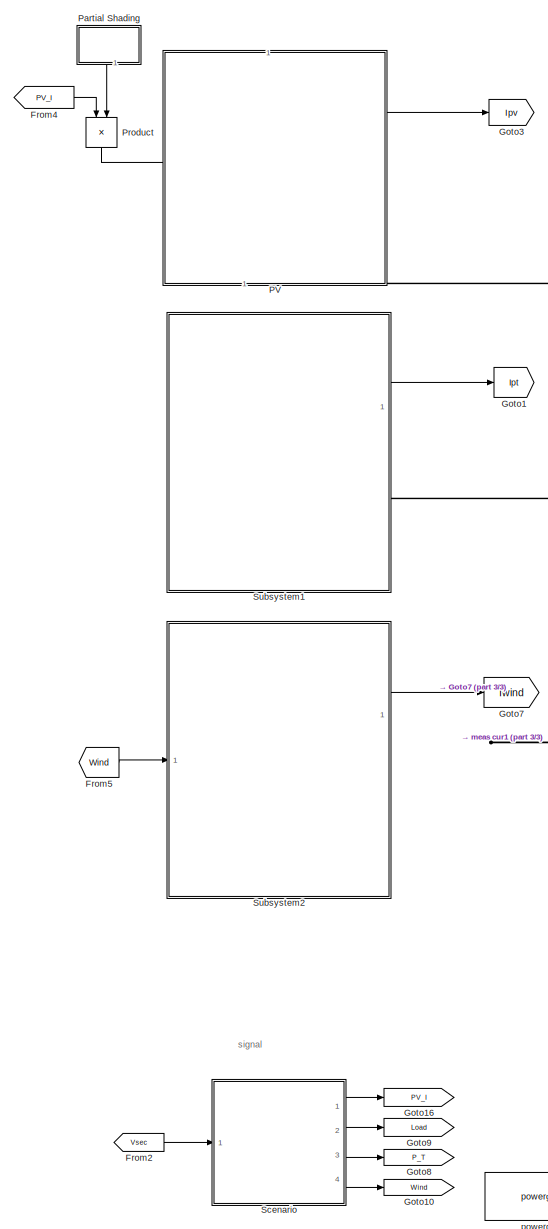
[diagram: root canvas - part 1/3, left side, full height]
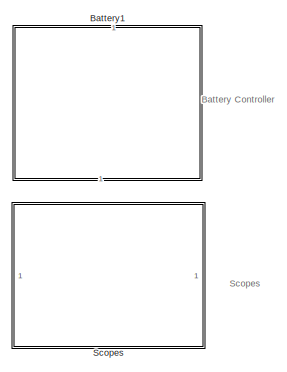
[diagram: root canvas - part 2/3, middle right region]
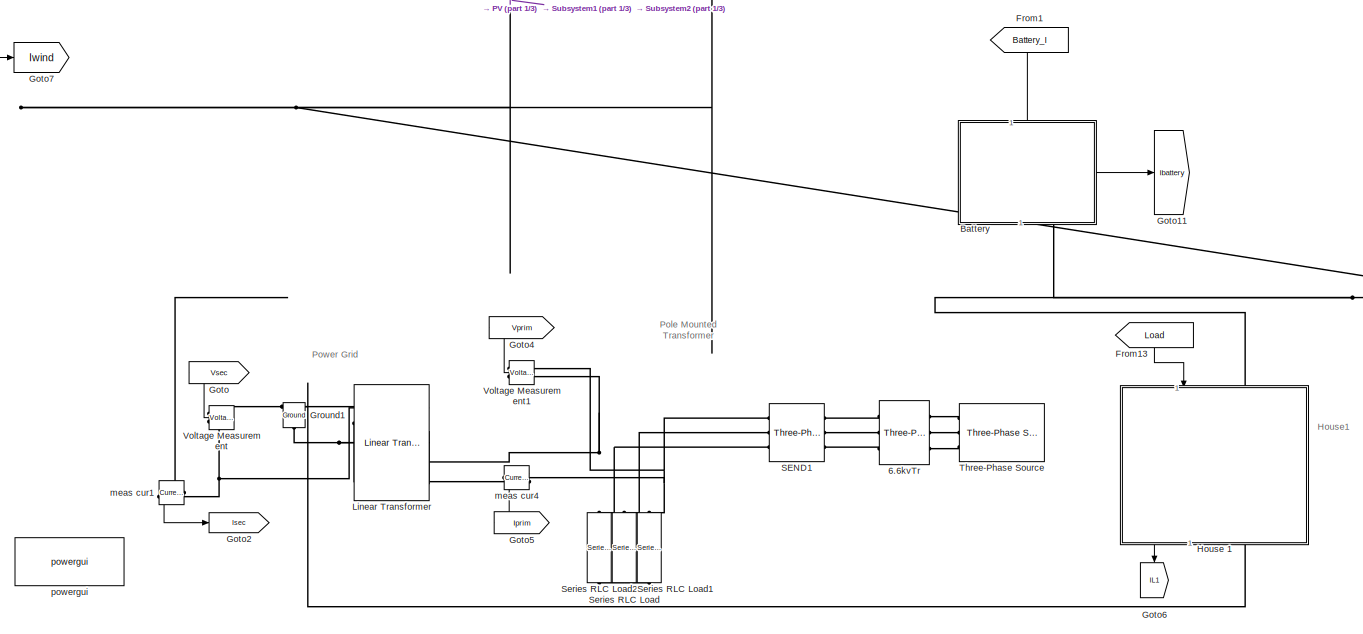
[diagram: root canvas - part 3/3, bottom center region]
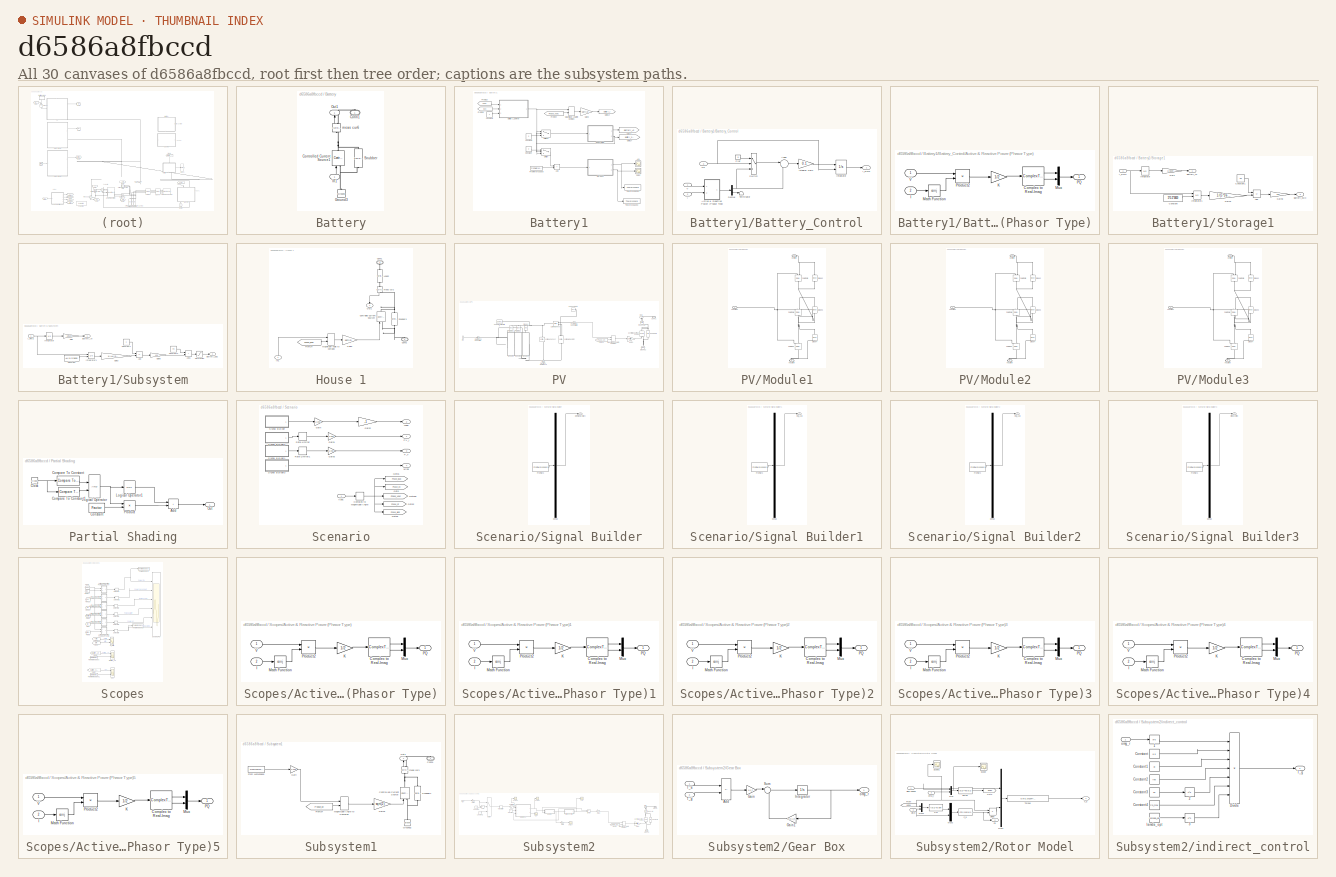
[diagram: thumbnail index - all 30 canvases of the model, root first then tree order]
MODEL slx_d6586a8fbccd
KIND model
CONFIG AbsTol = auto
CONFIG EnableMultiTasking = off
CONFIG FixedStep = 1/(1000)
CONFIG MaxStep = 60
CONFIG MinStep = auto
CONFIG PreLoadFcn = load('solar_load_data_24h.mat')\n
CONFIG RelTol = 1e-4
CONFIG SampleTimeConstraint = Unconstrained
CONFIG SolverName = ode23t
CONFIG StartTime = 0.0
CONFIG StopTime = 24*60*60
BLOCK [Reference] 6.6kvTr  REF=spsThreePhaseTransformerTwoWindingsLib/Three-Phase
Transformer
(Two Windings)
  NameLocation = top
  Ports = [0, 0, 0, 0, 0, 3, 3]
  SourceBlock = spsThreePhaseTransformerTwoWindingsLib/Three-Phase\nTransformer\n(Two Windings)
  SourceProductBaseCode = PS
  SourceType = Three-Phase Transformer (Two Windings)
BLOCK [SubSystem] Battery
  NameLocation = right
  PortSchema = {"entries":[{"content":{"sides":[{"content":{"connectorIds":[]},"type":"ConnectorPlacement.EquallySpacedRectSide","uuid":"c1286172-d85d-4151-a658-d607f2a227c1"},{"content":{"connectorIds":["In1"],"side":"RIGHT"},"type":"ConnectorPlacement.EquallySpacedRectSide","uuid":"b88a66e6-ea34-4253-9f56-045ec6735a8d"},{"content":{"connectorIds":["Out1"],"side":"TOP"},"type":"ConnectorPlacement.EquallySpacedR...<+392ch>
  Ports = [1, 1, 0, 0, 0, 0, 1]
  RequestExecContextInheritance = off
BLOCK [PMIOPort] Battery/Conn1
  NameLocation = right
  Side = Right
BLOCK [Reference] Battery/Controlled Current Source1  REF=spsControlledCurrentSourceLib/Controlled Current Source
  NameLocation = right
  Ports = [1, 0, 0, 0, 0, 1, 1]
  SourceBlock = spsControlledCurrentSourceLib/Controlled Current Source
  SourceProductBaseCode = PS
  SourceType = Controlled Current Source
BLOCK [Reference] Battery/Ground3  REF=spsGroundLib/Ground
  NameLocation = right
  Ports = [0, 0, 0, 0, 0, 1]
  SourceBlock = spsGroundLib/Ground
  SourceProductBaseCode = PS
  SourceType = Ground
BLOCK [Inport] Battery/In1
  NameLocation = right
BLOCK [Outport] Battery/Out1
  NameLocation = right
  VectorParamsAs1DForOutWhenUnconnected = off
BLOCK [Reference] Battery/Snubber  REF=spsSeriesRLCBranchLib/Series RLC Branch
  NameLocation = right
  Ports = [0, 0, 0, 0, 0, 1, 1]
  SourceBlock = spsSeriesRLCBranchLib/Series RLC Branch
  SourceProductBaseCode = PS
  SourceType = Series RLC Branch
BLOCK [Reference] Battery/meas cur6  REF=spsCurrentMeasurementLib/Current Measurement
  NameLocation = left
  Ports = [0, 1, 0, 0, 0, 1, 1]
  SourceBlock = spsCurrentMeasurementLib/Current Measurement
  SourceProductBaseCode = PS
  SourceType = Current Measurement
BLOCK [SubSystem] Battery1
  NameLocation = right
  Ports = []
  RequestExecContextInheritance = off
BLOCK [Sum] Battery1/Add
  IconShape = rectangular
  Ports = [2, 1]
BLOCK [Scope] Battery1/Ah1
  Floating = off
  NumInputPorts = 1
  Ports = [1]
  ScopeSpecificationString = Simulink.scopes.TimeScopeBlockCfg('CurrentConfiguration', extmgr.ConfigurationSet(extmgr.Configuration('Core','General UI',true),extmgr.Configuration('Core','Source UI',true),extmgr.Configuration('Sources','WiredSimulink',true,'DataLoggingVariableName','ScopeData3'),extmgr.Configuration('Visuals','Time Domain',true,'SerializedDisplays',{struct('MinYLimReal','-221.6947','MaxYLimReal','197.27913','Y...<+1379ch>
BLOCK [SubSystem] Battery1/Battery_Control
  Ports = [3, 1]
  RequestExecContextInheritance = off
BLOCK [SubSystem] Battery1/Battery_Control/Active & Reactive Power (Phasor Type)
  DialogController = POWERSYS.PowerSysDialog
  Ports = [2, 1]
  RequestExecContextInheritance = off
BLOCK [ComplexToRealImag] Battery1/Battery_Control/Active & Reactive Power (Phasor Type)/Complex to Real-Imag
  Ports = [1, 2]
BLOCK [Inport] Battery1/Battery_Control/Active & Reactive Power (Phasor Type)/I
  Port = 2
BLOCK [Gain] Battery1/Battery_Control/Active & Reactive Power (Phasor Type)/K
  Gain = 1/2
  OutDataTypeStr = Inherit: Same as input
  ParamDataTypeStr = Inherit: Same as input
  SaturateOnIntegerOverflow = on
BLOCK [Math] Battery1/Battery_Control/Active & Reactive Power (Phasor Type)/Math Function
  Operator = conj
  Ports = [1, 1]
  SignedPower = on
BLOCK [Mux] Battery1/Battery_Control/Active & Reactive Power (Phasor Type)/Mux
  DisplayOption = bar
  Inputs = 2
  Ports = [2, 1]
BLOCK [Outport] Battery1/Battery_Control/Active & Reactive Power (Phasor Type)/PQ
  VectorParamsAs1DForOutWhenUnconnected = off
BLOCK [Product] Battery1/Battery_Control/Active & Reactive Power (Phasor Type)/Product2
  InputSameDT = on
  OutDataTypeStr = Inherit: Same as first input
  Ports = [2, 1]
  SaturateOnIntegerOverflow = on
BLOCK [Inport] Battery1/Battery_Control/Active & Reactive Power (Phasor Type)/V
BLOCK [Sum] Battery1/Battery_Control/Add6
  Inputs = |+-
  Ports = [2, 1]
BLOCK [Demux] Battery1/Battery_Control/Demux
  Outputs = 2
  Ports = [1, 2]
BLOCK [Inport] Battery1/Battery_Control/I
  Port = 2
BLOCK [Outport] Battery1/Battery_Control/I_RMS
  InitialOutput = 0
  OutputWhenDisabled = reset
  VectorParamsAs1DForOutWhenUnconnected = off
BLOCK [Gain] Battery1/Battery_Control/Integral Gain
  Gain = 0.1
BLOCK [Integrator] Battery1/Battery_Control/Integrator
  ExternalReset = falling
  LimitOutput = on
  LowerSaturationLimit = -50
  Ports = [2, 1]
  UpperSaturationLimit = 50
BLOCK [Inport] Battery1/Battery_Control/On
  Port = 3
BLOCK [Constant] Battery1/Battery_Control/Pref
  NameLocation = top
  Value = 0
BLOCK [Switch] Battery1/Battery_Control/Switch
  InputSameDT = off
  SaturateOnIntegerOverflow = off
  Threshold = 0.5
BLOCK [Terminator] Battery1/Battery_Control/Terminator
BLOCK [Inport] Battery1/Battery_Control/V
BLOCK [Constant] Battery1/Constant
  Value = 0
BLOCK [Constant] Battery1/Constant1
  Value = 0
BLOCK [Constant] Battery1/Constant2
BLOCK [FromWorkspace] Battery1/From Workspace
  VariableName = energy
BLOCK [From] Battery1/From23
  GotoTag = Vsec
  TagVisibility = global
BLOCK [From] Battery1/From24
  GotoTag = Phase_Vsec
  TagVisibility = global
BLOCK [From] Battery1/From25
  GotoTag = Isec
  TagVisibility = global
BLOCK [Gain] Battery1/Gain3
  Gain = sqrt(2)
BLOCK [Goto] Battery1/Goto14
  GotoTag = Battery_I
  TagVisibility = global
BLOCK [Goto] Battery1/Goto15
  GotoTag = Battery_Ah
  TagVisibility = global
BLOCK [Goto] Battery1/Goto17
  GotoTag = Battery_SOC
  TagVisibility = global
BLOCK [MagnitudeAngleToComplex] Battery1/Magnitude-Angle to Complex
  Ports = [2, 1]
BLOCK [Scope] Battery1/SOC1
  Floating = off
  NumInputPorts = 1
  Ports = [1]
  ScopeSpecificationString = Simulink.scopes.TimeScopeBlockCfg('CurrentConfiguration', extmgr.ConfigurationSet(extmgr.Configuration('Core','General UI',true),extmgr.Configuration('Core','Source UI',true),extmgr.Configuration('Sources','WiredSimulink',true,'DataLoggingVariableName','ScopeData4'),extmgr.Configuration('Visuals','Time Domain',true,'SerializedDisplays',{struct('MinYLimReal','20.54417','MaxYLimReal','104.33894','YL...<+1412ch>
BLOCK [SubSystem] Battery1/Storage1
  Ports = [1, 2]
  RequestExecContextInheritance = off
BLOCK [Sum] Battery1/Storage1/Add
  IconShape = rectangular
  Inputs = +-
  Ports = [2, 1]
BLOCK [Outport] Battery1/Storage1/Battery_Ah
  VectorParamsAs1DForOutWhenUnconnected = off
BLOCK [Outport] Battery1/Storage1/Battery_SOC
  Port = 2
  VectorParamsAs1DForOutWhenUnconnected = off
BLOCK [Constant] Battery1/Storage1/Constant
  Value = 5*0.2*3600
BLOCK [Constant] Battery1/Storage1/Constant1
  Value = 0.5
BLOCK [Gain] Battery1/Storage1/Gain
  Gain = 1/3600
BLOCK [Gain] Battery1/Storage1/Gain3
  Gain = 1/(5*3600)
BLOCK [Gain] Battery1/Storage1/Gain8
  Gain = 200
BLOCK [Inport] Battery1/Storage1/I_RMS
BLOCK [Integrator] Battery1/Storage1/Integrator
  Ports = [1, 1]
BLOCK [Integrator] Battery1/Storage1/Integrator1
  InitialConditionSource = external
  Ports = [2, 1]
BLOCK [SubSystem] Battery1/Subsystem
  Ports = [1, 2]
  RequestExecContextInheritance = off
BLOCK [Sum] Battery1/Subsystem/Add
  IconShape = rectangular
  Inputs = +-
  Ports = [2, 1]
BLOCK [Sum] Battery1/Subsystem/Add1
  IconShape = rectangular
  Ports = [2, 1]
BLOCK [Outport] Battery1/Subsystem/Battery_Ah
  VectorParamsAs1DForOutWhenUnconnected = off
BLOCK [Outport] Battery1/Subsystem/Battery_SOC
  Port = 2
  VectorParamsAs1DForOutWhenUnconnected = off
BLOCK [Constant] Battery1/Subsystem/Constant
  Value = AH*0.2*3600
BLOCK [Constant] Battery1/Subsystem/Constant1
BLOCK [Constant] Battery1/Subsystem/Constant2
  Value = -70
BLOCK [Gain] Battery1/Subsystem/Gain
  Gain = 1/3600
BLOCK [Gain] Battery1/Subsystem/Gain3
  Gain = 1/(AH*3600)
BLOCK [Gain] Battery1/Subsystem/Gain8
  Gain = 100
BLOCK [Inport] Battery1/Subsystem/I_RMS
BLOCK [Integrator] Battery1/Subsystem/Integrator
  Ports = [1, 1]
BLOCK [Integrator] Battery1/Subsystem/Integrator1
  InitialConditionSource = external
  Ports = [2, 1]
BLOCK [Saturate] Battery1/Subsystem/Saturation
  LowerLimit = 0
  UpperLimit = 100
BLOCK [Switch] Battery1/Switch
  Criteria = u2 > Threshold
  InputSameDT = off
  SaturateOnIntegerOverflow = off
  Threshold = 5
BLOCK [Switch] Battery1/Switch1
  Criteria = u2 > Threshold
  InputSameDT = off
  SaturateOnIntegerOverflow = off
  Threshold = 5
BLOCK [ToWorkspace] Battery1/To Workspace1
  FixptAsFi = on
  MaxDataPoints = inf
  Ports = [1]
  SampleTime = -1
  SaveFormat = Timeseries
  VariableName = PT_AH1
BLOCK [ToWorkspace] Battery1/To Workspace2
  FixptAsFi = on
  MaxDataPoints = inf
  Ports = [1]
  SampleTime = -1
  SaveFormat = Timeseries
  VariableName = PT_SOC1
BLOCK [From] From1
  GotoTag = Battery_I
  NameLocation = left
  TagVisibility = global
BLOCK [From] From13
  GotoTag = Load
  NameLocation = left
  TagVisibility = global
BLOCK [From] From2
  GotoTag = Vsec
  TagVisibility = global
BLOCK [From] From4
  GotoTag = PV_I
  TagVisibility = global
BLOCK [From] From5
  GotoTag = Wind
  TagVisibility = global
BLOCK [Goto] Goto
  GotoTag = Vsec
  NameLocation = top
  TagVisibility = global
BLOCK [Goto] Goto1
  GotoTag = Ipt
  TagVisibility = global
BLOCK [Goto] Goto10
  GotoTag = Wind
  TagVisibility = global
BLOCK [Goto] Goto11
  GotoTag = Ibattery
  TagVisibility = global
BLOCK [Goto] Goto16
  GotoTag = PV_I
  TagVisibility = global
BLOCK [Goto] Goto2
  GotoTag = Isec
  TagVisibility = global
BLOCK [Goto] Goto3
  GotoTag = Ipv
  TagVisibility = global
BLOCK [Goto] Goto4
  GotoTag = Vprim
  NameLocation = top
  TagVisibility = global
BLOCK [Goto] Goto5
  GotoTag = Iprim
  NameLocation = top
  TagVisibility = global
BLOCK [Goto] Goto6
  GotoTag = IL1
  NameLocation = left
  TagVisibility = global
BLOCK [Goto] Goto7
  GotoTag = Iwind
  TagVisibility = global
BLOCK [Goto] Goto8
  GotoTag = P_T
  TagVisibility = global
BLOCK [Goto] Goto9
  GotoTag = Load
  TagVisibility = global
BLOCK [Reference] Ground1  REF=spsGroundLib/Ground
  NameLocation = left
  Ports = [0, 0, 0, 0, 0, 1]
  SourceBlock = spsGroundLib/Ground
  SourceProductBaseCode = PS
  SourceType = Ground
BLOCK [SubSystem] House 1
  NameLocation = right
  Ports = [1, 1, 0, 0, 0, 1, 1]
  RequestExecContextInheritance = off
BLOCK [PMIOPort] House 1/Conn1
  NameLocation = right
  Side = Left
BLOCK [PMIOPort] House 1/Conn2
  NameLocation = right
  Port = 2
  Side = Right
BLOCK [Reference] House 1/Controlled Current Source4  REF=spsControlledCurrentSourceLib/Controlled Current Source
  NameLocation = right
  Ports = [1, 0, 0, 0, 0, 1, 1]
  SourceBlock = spsControlledCurrentSourceLib/Controlled Current Source
  SourceProductBaseCode = PS
  SourceType = Controlled Current Source
BLOCK [From] House 1/From24
  GotoTag = Phase_load
  TagVisibility = global
BLOCK [Gain] House 1/Gain3
  Gain = sqrt(2)
BLOCK [Inport] House 1/In1
  NameLocation = right
BLOCK [Reference] House 1/Load2  REF=spsSeriesRLCBranchLib/Series RLC Branch
  NameLocation = right
  Ports = [0, 0, 0, 0, 0, 1, 1]
  SourceBlock = spsSeriesRLCBranchLib/Series RLC Branch
  SourceProductBaseCode = PS
  SourceType = Series RLC Branch
BLOCK [MagnitudeAngleToComplex] House 1/Magnitude-Angle to Complex
  Ports = [2, 1]
BLOCK [Outport] House 1/Out1
  NameLocation = right
  VectorParamsAs1DForOutWhenUnconnected = off
BLOCK [Reference] House 1/Snubber3  REF=spsSeriesRLCBranchLib/Series RLC Branch
  NameLocation = right
  Ports = [0, 0, 0, 0, 0, 1, 1]
  SourceBlock = spsSeriesRLCBranchLib/Series RLC Branch
  SourceProductBaseCode = PS
  SourceType = Series RLC Branch
BLOCK [Reference] House 1/meas cur2  REF=spsCurrentMeasurementLib/Current Measurement
  NameLocation = right
  Ports = [0, 1, 0, 0, 0, 1, 1]
  SourceBlock = spsCurrentMeasurementLib/Current Measurement
  SourceProductBaseCode = PS
  SourceType = Current Measurement
BLOCK [Reference] Linear Transformer  REF=spsLinearTransformerLib/Linear Transformer
  NameLocation = top
  Ports = [0, 0, 0, 0, 0, 2, 4]
  SourceBlock = spsLinearTransformerLib/Linear Transformer
  SourceProductBaseCode = PS
  SourceType = Linear Transformer
BLOCK [SubSystem] PV
  NameLocation = left
  PortSchema = {"entries":[{"content":{"sides":[{"content":{"connectorIds":[]},"type":"ConnectorPlacement.EquallySpacedRectSide","uuid":"c1286172-d85d-4151-a658-d607f2a227c1"},{"content":{"connectorIds":[],"side":"RIGHT"},"type":"ConnectorPlacement.EquallySpacedRectSide","uuid":"b88a66e6-ea34-4253-9f56-045ec6735a8d"},{"content":{"connectorIds":["In1"],"side":"TOP"},"type":"ConnectorPlacement.EquallySpacedRectSid...<+393ch>
  Ports = [1, 1, 0, 0, 0, 0, 1]
  RequestExecContextInheritance = off
BLOCK [PMIOPort] PV/Conn1
  NameLocation = right
  Side = Right
BLOCK [Reference] PV/Controlled Current Source  REF=spsControlledCurrentSourceLib/Controlled Current Source
  NameLocation = right
  Ports = [1, 0, 0, 0, 0, 1, 1]
  SourceBlock = spsControlledCurrentSourceLib/Controlled Current Source
  SourceProductBaseCode = PS
  SourceType = Controlled Current Source
BLOCK [Reference] PV/Current Sensor  REF=fl_lib/Electrical/Electrical Sensors/Current Sensor
  Ports = [0, 0, 0, 0, 0, 1, 2]
  SourceBlock = fl_lib/Electrical/Electrical Sensors/Current Sensor
  SourceProductBaseCode = SS
  SourceType = Current Sensor
BLOCK [Reference] PV/Diode1  REF=ee_lib/Semiconductors &
Converters/Diode
  NameLocation = right
  Ports = [0, 0, 0, 0, 0, 1, 1]
  SourceBlock = ee_lib/Semiconductors &\nConverters/Diode
  SourceProductBaseCode = PS
  SourceType = Diode
BLOCK [Reference] PV/Diode2  REF=ee_lib/Semiconductors &
Converters/Diode
  NameLocation = right
  Ports = [0, 0, 0, 0, 0, 1, 1]
  SourceBlock = ee_lib/Semiconductors &\nConverters/Diode
  SourceProductBaseCode = PS
  SourceType = Diode
BLOCK [Reference] PV/Diode3  REF=ee_lib/Semiconductors &
Converters/Diode
  NameLocation = right
  Ports = [0, 0, 0, 0, 0, 1, 1]
  SourceBlock = ee_lib/Semiconductors &\nConverters/Diode
  SourceProductBaseCode = PS
  SourceType = Diode
BLOCK [Reference] PV/Electrical Reference  REF=fl_lib/Electrical/Electrical Elements/Electrical Reference
  NameLocation = right
  Ports = [0, 0, 0, 0, 0, 1]
  SourceBlock = fl_lib/Electrical/Electrical Elements/Electrical Reference
  SourceProductBaseCode = SS
  SourceType = Electrical Reference
BLOCK [From] PV/From24
  GotoTag = Phase_pv
  TagVisibility = global
BLOCK [Gain] PV/Gain3
  Gain = sqrt(2)
BLOCK [Reference] PV/Ground2  REF=spsGroundLib/Ground
  NameLocation = right
  Ports = [0, 0, 0, 0, 0, 1]
  SourceBlock = spsGroundLib/Ground
  SourceProductBaseCode = PS
  SourceType = Ground
BLOCK [Inport] PV/In1
BLOCK [MagnitudeAngleToComplex] PV/Magnitude-Angle to Complex
  Ports = [2, 1]
BLOCK [SubSystem] PV/Module1
  PortSchema = {"entries":[{"content":{"sides":[{"content":{"connectorIds":["LConn1"]},"type":"ConnectorPlacement.EquallySpacedRectSide","uuid":"ab66651e-609a-459c-9d92-4a21cc3a8387"},{"content":{"connectorIds":[],"side":"RIGHT"},"type":"ConnectorPlacement.EquallySpacedRectSide","uuid":"9128ca8b-245e-4b88-89cc-48151ac1f427"},{"content":{"connectorIds":["LConn2"],"side":"TOP"},"type":"ConnectorPlacement.EquallySp...<+397ch>  <repeated x3 — deduplicated; at blocks: Module1, Module2, Module3>
  Ports = [0, 0, 0, 0, 0, 2, 1]
  RequestExecContextInheritance = off
BLOCK [Reference] PV/Module1/Diode2  REF=fl_lib/Electrical/Electrical Elements/Diode
  NameLocation = right
  Ports = [0, 0, 0, 0, 0, 1, 1]
  SourceBlock = fl_lib/Electrical/Electrical Elements/Diode
  SourceProductBaseCode = SS
  SourceType = Diode
BLOCK [Reference] PV/Module1/Diode3  REF=fl_lib/Electrical/Electrical Elements/Diode
  NameLocation = right
  Ports = [0, 0, 0, 0, 0, 1, 1]
  SourceBlock = fl_lib/Electrical/Electrical Elements/Diode
  SourceProductBaseCode = SS
  SourceType = Diode
BLOCK [Reference] PV/Module1/Diode4  REF=fl_lib/Electrical/Electrical Elements/Diode
  NameLocation = right
  Ports = [0, 0, 0, 0, 0, 1, 1]
  SourceBlock = fl_lib/Electrical/Electrical Elements/Diode
  SourceProductBaseCode = SS
  SourceType = Diode
BLOCK [Reference] PV/Module1/Solar Cell  REF=ee_lib/Sources/Solar Cell
  NameLocation = right
  Ports = [0, 0, 0, 0, 0, 2, 1]
  SourceBlock = ee_lib/Sources/Solar Cell
  SourceProductBaseCode = PS
  SourceType = Solar Cell
BLOCK [Reference] PV/Module1/Solar Cell1  REF=ee_lib/Sources/Solar Cell
  NameLocation = right
  Ports = [0, 0, 0, 0, 0, 2, 1]
  SourceBlock = ee_lib/Sources/Solar Cell
  SourceProductBaseCode = PS
  SourceType = Solar Cell
BLOCK [Reference] PV/Module1/Solar Cell2  REF=ee_lib/Sources/Solar Cell
  NameLocation = right
  Ports = [0, 0, 0, 0, 0, 2, 1]
  SourceBlock = ee_lib/Sources/Solar Cell
  SourceProductBaseCode = PS
  SourceType = Solar Cell
BLOCK [PMIOPort] PV/Module1/constant
  Side = Left
BLOCK [PMIOPort] PV/Module1/negative
  Port = 3
  Side = Right
BLOCK [PMIOPort] PV/Module1/positive
  Port = 2
  Side = Left
BLOCK [SubSystem] PV/Module2
  Ports = [0, 0, 0, 0, 0, 2, 1]
  RequestExecContextInheritance = off
BLOCK [Reference] PV/Module2/Diode2  REF=fl_lib/Electrical/Electrical Elements/Diode
  NameLocation = right
  Ports = [0, 0, 0, 0, 0, 1, 1]
  SourceBlock = fl_lib/Electrical/Electrical Elements/Diode
  SourceProductBaseCode = SS
  SourceType = Diode
BLOCK [Reference] PV/Module2/Diode3  REF=fl_lib/Electrical/Electrical Elements/Diode
  NameLocation = right
  Ports = [0, 0, 0, 0, 0, 1, 1]
  SourceBlock = fl_lib/Electrical/Electrical Elements/Diode
  SourceProductBaseCode = SS
  SourceType = Diode
BLOCK [Reference] PV/Module2/Diode4  REF=fl_lib/Electrical/Electrical Elements/Diode
  NameLocation = right
  Ports = [0, 0, 0, 0, 0, 1, 1]
  SourceBlock = fl_lib/Electrical/Electrical Elements/Diode
  SourceProductBaseCode = SS
  SourceType = Diode
BLOCK [Reference] PV/Module2/Solar Cell  REF=ee_lib/Sources/Solar Cell
  NameLocation = right
  Ports = [0, 0, 0, 0, 0, 2, 1]
  SourceBlock = ee_lib/Sources/Solar Cell
  SourceProductBaseCode = PS
  SourceType = Solar Cell
BLOCK [Reference] PV/Module2/Solar Cell1  REF=ee_lib/Sources/Solar Cell
  NameLocation = right
  Ports = [0, 0, 0, 0, 0, 2, 1]
  SourceBlock = ee_lib/Sources/Solar Cell
  SourceProductBaseCode = PS
  SourceType = Solar Cell
BLOCK [Reference] PV/Module2/Solar Cell2  REF=ee_lib/Sources/Solar Cell
  NameLocation = right
  Ports = [0, 0, 0, 0, 0, 2, 1]
  SourceBlock = ee_lib/Sources/Solar Cell
  SourceProductBaseCode = PS
  SourceType = Solar Cell
BLOCK [PMIOPort] PV/Module2/constant
  Side = Left
BLOCK [PMIOPort] PV/Module2/negative
  Port = 3
  Side = Right
BLOCK [PMIOPort] PV/Module2/positive
  Port = 2
  Side = Left
BLOCK [SubSystem] PV/Module3
  Ports = [0, 0, 0, 0, 0, 2, 1]
  RequestExecContextInheritance = off
BLOCK [Reference] PV/Module3/Diode2  REF=fl_lib/Electrical/Electrical Elements/Diode
  NameLocation = right
  Ports = [0, 0, 0, 0, 0, 1, 1]
  SourceBlock = fl_lib/Electrical/Electrical Elements/Diode
  SourceProductBaseCode = SS
  SourceType = Diode
BLOCK [Reference] PV/Module3/Diode3  REF=fl_lib/Electrical/Electrical Elements/Diode
  NameLocation = right
  Ports = [0, 0, 0, 0, 0, 1, 1]
  SourceBlock = fl_lib/Electrical/Electrical Elements/Diode
  SourceProductBaseCode = SS
  SourceType = Diode
BLOCK [Reference] PV/Module3/Diode4  REF=fl_lib/Electrical/Electrical Elements/Diode
  NameLocation = right
  Ports = [0, 0, 0, 0, 0, 1, 1]
  SourceBlock = fl_lib/Electrical/Electrical Elements/Diode
  SourceProductBaseCode = SS
  SourceType = Diode
BLOCK [Reference] PV/Module3/Solar Cell  REF=ee_lib/Sources/Solar Cell
  NameLocation = right
  Ports = [0, 0, 0, 0, 0, 2, 1]
  SourceBlock = ee_lib/Sources/Solar Cell
  SourceProductBaseCode = PS
  SourceType = Solar Cell
BLOCK [Reference] PV/Module3/Solar Cell1  REF=ee_lib/Sources/Solar Cell
  NameLocation = right
  Ports = [0, 0, 0, 0, 0, 2, 1]
  SourceBlock = ee_lib/Sources/Solar Cell
  SourceProductBaseCode = PS
  SourceType = Solar Cell
BLOCK [Reference] PV/Module3/Solar Cell2  REF=ee_lib/Sources/Solar Cell
  NameLocation = right
  Ports = [0, 0, 0, 0, 0, 2, 1]
  SourceBlock = ee_lib/Sources/Solar Cell
  SourceProductBaseCode = PS
  SourceType = Solar Cell
BLOCK [PMIOPort] PV/Module3/constant
  Side = Left
BLOCK [PMIOPort] PV/Module3/negative
  Port = 3
  Side = Right
BLOCK [PMIOPort] PV/Module3/positive
  Port = 2
  Side = Left
BLOCK [Outport] PV/Out1
  NameLocation = right
  VectorParamsAs1DForOutWhenUnconnected = off
BLOCK [Reference] PV/PS Constant1  REF=fl_lib/Physical Signals/Sources/PS Constant
  Ports = [0, 0, 0, 0, 0, 0, 1]
  SourceBlock = fl_lib/Physical Signals/Sources/PS Constant
  SourceProductBaseCode = SS
  SourceType = PS Constant
BLOCK [Reference] PV/PS-Simulink Converter1  REF=nesl_utility/PS-Simulink
Converter
  Ports = [0, 1, 0, 0, 0, 1]
  SourceBlock = nesl_utility/PS-Simulink\nConverter
  SourceProductBaseCode = PW,SS
  SourceType = PS-Simulink\nConverter
BLOCK [Reference] PV/Simulink-PS Converter  REF=nesl_utility/Simulink-PS
Converter
  Ports = [1, 0, 0, 0, 0, 0, 1]
  SourceBlock = nesl_utility/Simulink-PS\nConverter
  SourceProductBaseCode = PW,SS
  SourceType = Simulink-PS\nConverter
BLOCK [Reference] PV/Snubber1  REF=spsSeriesRLCBranchLib/Series RLC Branch
  NameLocation = right
  Ports = [0, 0, 0, 0, 0, 1, 1]
  SourceBlock = spsSeriesRLCBranchLib/Series RLC Branch
  SourceProductBaseCode = PS
  SourceType = Series RLC Branch
BLOCK [Reference] PV/Solver Configuration  REF=nesl_utility/Solver
Configuration
  Ports = [0, 0, 0, 0, 0, 0, 1]
  SourceBlock = nesl_utility/Solver\nConfiguration
  SourceProductBaseCode = PW,SS
  SourceType = Solver\nConfiguration
BLOCK [Reference] PV/Variable Resistor  REF=fl_lib/Electrical/Electrical Elements/Variable Resistor
  NameLocation = left
  Ports = [0, 0, 0, 0, 0, 2, 1]
  SourceBlock = fl_lib/Electrical/Electrical Elements/Variable Resistor
  SourceProductBaseCode = SS
  SourceType = Variable Resistor
BLOCK [Reference] PV/Voltage Sensor  REF=fl_lib/Electrical/Electrical Sensors/Voltage Sensor
  NameLocation = right
  Ports = [0, 0, 0, 0, 0, 1, 2]
  SourceBlock = fl_lib/Electrical/Electrical Sensors/Voltage Sensor
  SourceProductBaseCode = SS
  SourceType = Voltage Sensor
BLOCK [Reference] PV/meas cur3  REF=spsCurrentMeasurementLib/Current Measurement
  NameLocation = left
  Ports = [0, 1, 0, 0, 0, 1, 1]
  SourceBlock = spsCurrentMeasurementLib/Current Measurement
  SourceProductBaseCode = PS
  SourceType = Current Measurement
BLOCK [SubSystem] Partial Shading
  NameLocation = left
  Ports = [0, 1]
  RequestExecContextInheritance = off
BLOCK [Sum] Partial Shading/Add
  IconShape = rectangular
  Ports = [2, 1]
BLOCK [Clock] Partial Shading/Clock
  Decimation = 1
BLOCK [Reference] Partial Shading/Compare To Constant  REF=simulink/Logic and Bit
Operations/Compare
To Constant
  Ports = [1, 1]
  SourceBlock = simulink/Logic and Bit\nOperations/Compare\nTo Constant
  SourceProductBaseCode = SL
  SourceType = Compare To Constant
BLOCK [Reference] Partial Shading/Compare To Constant1  REF=simulink/Logic and Bit
Operations/Compare
To Constant
  Ports = [1, 1]
  SourceBlock = simulink/Logic and Bit\nOperations/Compare\nTo Constant
  SourceProductBaseCode = SL
  SourceType = Compare To Constant
BLOCK [Constant] Partial Shading/Constant
  Value = Factor
BLOCK [Logic] Partial Shading/Logical Operator
  AllPortsSameDT = off
  OutDataTypeStr = float('double')
  Ports = [2, 1]
BLOCK [Logic] Partial Shading/Logical Operator1
  AllPortsSameDT = off
  Operator = NOT
  OutDataTypeStr = float('double')
  Ports = [1, 1]
BLOCK [Outport] Partial Shading/Out
  VectorParamsAs1DForOutWhenUnconnected = off
BLOCK [Product] Partial Shading/Product
  Ports = [2, 1]
BLOCK [Product] Product
  NameLocation = left
  Ports = [2, 1]
BLOCK [Reference] SEND1  REF=spsThreePhasePISectionLineLib/Three-Phase
PI Section Line
  AttributesFormatString = \n
  NameLocation = top
  Ports = [0, 0, 0, 0, 0, 3, 3]
  SourceBlock = spsThreePhasePISectionLineLib/Three-Phase\nPI Section Line
  SourceProductBaseCode = PS
  SourceType = Three-Phase PI Section Line
BLOCK [SubSystem] Scenario
  Ports = [1, 4]
  RequestExecContextInheritance = off
BLOCK [ComplexToMagnitudeAngle] Scenario/Complex to Magnitude-Angle
  Output = Angle
  Ports = [1, 1]
BLOCK [Gain] Scenario/Gain
  Gain = 1/200
BLOCK [Gain] Scenario/Gain1
  Gain = 1/200
BLOCK [Gain] Scenario/Gain2
  Gain = -1
BLOCK [Gain] Scenario/Gain3
  Gain = 1/200
BLOCK [Goto] Scenario/Goto
  GotoTag = Phase_pv
  TagVisibility = global
BLOCK [Goto] Scenario/Goto1
  GotoTag = Phase_load
  TagVisibility = global
BLOCK [Goto] Scenario/Goto18
  GotoTag = Phase_Vsec
  TagVisibility = global
BLOCK [Goto] Scenario/Goto2
  GotoTag = Phase_pt
  TagVisibility = global
BLOCK [Goto] Scenario/Goto3
  GotoTag = Phase_wind
  TagVisibility = global
BLOCK [Outport] Scenario/Load
  Port = 2
  VectorParamsAs1DForOutWhenUnconnected = off
BLOCK [Outport] Scenario/PV_I
  VectorParamsAs1DForOutWhenUnconnected = off
BLOCK [Outport] Scenario/P_T
  Port = 3
BLOCK [RateLimiter] Scenario/Rate Limiter
  FallingSlewLimit = -0.1
  RisingSlewLimit = 0.1
  SampleTimeMode = inherited
BLOCK [RateLimiter] Scenario/Rate Limiter1
  FallingSlewLimit = -0.5
  RisingSlewLimit = 0.5
  SampleTimeMode = inherited
BLOCK [SubSystem] Scenario/Signal Builder
  ClipboardFcn = sigbuilder_block('clipboard');
  CloseFcn = sigbuilder_block('close');
  ContinueFcn = sigbuilder_block('continue');
  CopyFcn = sigbuilder_block('copy');
  DeleteFcn = sigbuilder_block('delete');
  LoadFcn = sigbuilder_block('load');
  MaskHideContents = on
  ModelCloseFcn = sigbuilder_block('modelClose');
  NameChangeFcn = sigbuilder_block('namechange');
  OpenFcn = sigbuilder_block('open',[588.6 91.2 550.8 400.2 ]);
  PauseFcn = sigbuilder_block('pause');
  Ports = [0, 1]
  PreSaveFcn = sigbuilder_block('preSave');
  RequestExecContextInheritance = off
  StartFcn = sigbuilder_block('start');
  StopFcn = sigbuilder_block('stop');
  Tag = STV Subsys
BLOCK [Demux] Scenario/Signal Builder/Demux
  DisplayOption = none
  Outputs = 1
  Ports = [1, 1]
  Tag = STV Demux
BLOCK [FromWorkspace] Scenario/Signal Builder/FromWs
  Tag = STV FromWs
  VariableName = tuvar
BLOCK [Outport] Scenario/Signal Builder/demand(MW)
  Tag = STV Outport
BLOCK [SubSystem] Scenario/Signal Builder1
  ClipboardFcn = sigbuilder_block('clipboard');
  CloseFcn = sigbuilder_block('close');
  ContinueFcn = sigbuilder_block('continue');
  CopyFcn = sigbuilder_block('copy');
  DeleteFcn = sigbuilder_block('delete');
  LoadFcn = sigbuilder_block('load');
  MaskHideContents = on
  ModelCloseFcn = sigbuilder_block('modelClose');
  NameChangeFcn = sigbuilder_block('namechange');
  OpenFcn = sigbuilder_block('open',[437.6 199.2 550.4 400 ]);
  PauseFcn = sigbuilder_block('pause');
  Ports = [0, 1]
  PreSaveFcn = sigbuilder_block('preSave');
  RequestExecContextInheritance = off
  StartFcn = sigbuilder_block('start');
  StopFcn = sigbuilder_block('stop');
  Tag = STV Subsys
BLOCK [Outport] Scenario/Signal Builder1/DNI_Avg
  Tag = STV Outport
BLOCK [Demux] Scenario/Signal Builder1/Demux
  DisplayOption = none
  Outputs = 1
  Ports = [1, 1]
  Tag = STV Demux
BLOCK [FromWorkspace] Scenario/Signal Builder1/FromWs
  Tag = STV FromWs
  VariableName = tuvar
BLOCK [SubSystem] Scenario/Signal Builder2
  ClipboardFcn = sigbuilder_block('clipboard');
  CloseFcn = sigbuilder_block('close');
  ContinueFcn = sigbuilder_block('continue');
  CopyFcn = sigbuilder_block('copy');
  DeleteFcn = sigbuilder_block('delete');
  LoadFcn = sigbuilder_block('load');
  MaskHideContents = on
  ModelCloseFcn = sigbuilder_block('modelClose');
  NameChangeFcn = sigbuilder_block('namechange');
  OpenFcn = sigbuilder_block('open',[154.8 102 550.8 400.2 ]);
  PauseFcn = sigbuilder_block('pause');
  Ports = [0, 1]
  PreSaveFcn = sigbuilder_block('preSave');
  RequestExecContextInheritance = off
  StartFcn = sigbuilder_block('start');
  StopFcn = sigbuilder_block('stop');
  Tag = STV Subsys
BLOCK [Outport] Scenario/Signal Builder2/DNI_Avg
  Tag = STV Outport
BLOCK [Demux] Scenario/Signal Builder2/Demux
  DisplayOption = none
  Outputs = 1
  Ports = [1, 1]
  Tag = STV Demux
BLOCK [FromWorkspace] Scenario/Signal Builder2/FromWs
  Tag = STV FromWs
  VariableName = tuvar
BLOCK [SubSystem] Scenario/Signal Builder3
  ClipboardFcn = sigbuilder_block('clipboard');
  CloseFcn = sigbuilder_block('close');
  ContinueFcn = sigbuilder_block('continue');
  CopyFcn = sigbuilder_block('copy');
  DeleteFcn = sigbuilder_block('delete');
  LoadFcn = sigbuilder_block('load');
  MaskHideContents = on
  ModelCloseFcn = sigbuilder_block('modelClose');
  NameChangeFcn = sigbuilder_block('namechange');
  OpenFcn = sigbuilder_block('open',[437.6 199.2 550.4 400 ]);
  PauseFcn = sigbuilder_block('pause');
  Ports = [0, 1]
  PreSaveFcn = sigbuilder_block('preSave');
  RequestExecContextInheritance = off
  StartFcn = sigbuilder_block('start');
  StopFcn = sigbuilder_block('stop');
  Tag = STV Subsys
BLOCK [Demux] Scenario/Signal Builder3/Demux
  DisplayOption = none
  Outputs = 1
  Ports = [1, 1]
  Tag = STV Demux
BLOCK [FromWorkspace] Scenario/Signal Builder3/FromWs
  Tag = STV FromWs
  VariableName = tuvar
BLOCK [Outport] Scenario/Signal Builder3/wind(km//h)
  Tag = STV Outport
BLOCK [Inport] Scenario/Vsec
BLOCK [Outport] Scenario/wind
  Port = 4
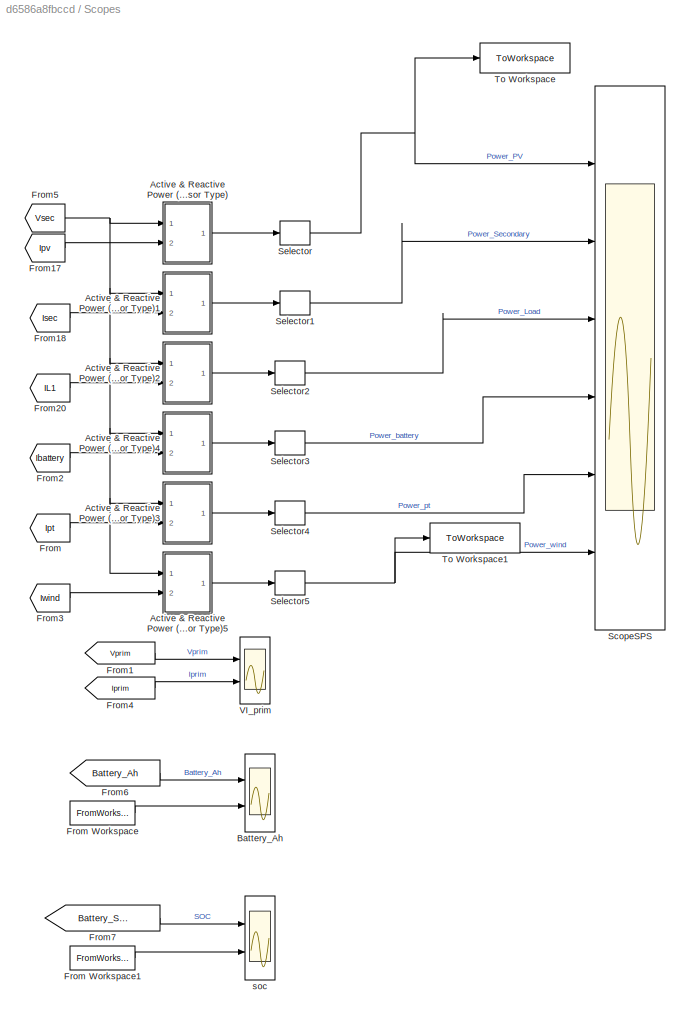
BLOCK [SubSystem] Scopes
  Ports = []
  RequestExecContextInheritance = off
BLOCK [SubSystem] Scopes/Active & Reactive Power (Phasor Type)
  DialogController = POWERSYS.PowerSysDialog
  Ports = [2, 1]
  RequestExecContextInheritance = off
BLOCK [ComplexToRealImag] Scopes/Active & Reactive Power (Phasor Type)/Complex to Real-Imag
  Ports = [1, 2]
BLOCK [Inport] Scopes/Active & Reactive Power (Phasor Type)/I
  Port = 2
BLOCK [Gain] Scopes/Active & Reactive Power (Phasor Type)/K
  Gain = 1/2
  OutDataTypeStr = Inherit: Same as input
  ParamDataTypeStr = Inherit: Same as input
  SaturateOnIntegerOverflow = on
BLOCK [Math] Scopes/Active & Reactive Power (Phasor Type)/Math Function
  Operator = conj
  Ports = [1, 1]
  SignedPower = on
BLOCK [Mux] Scopes/Active & Reactive Power (Phasor Type)/Mux
  DisplayOption = bar
  Inputs = 2
  Ports = [2, 1]
BLOCK [Outport] Scopes/Active & Reactive Power (Phasor Type)/PQ
  VectorParamsAs1DForOutWhenUnconnected = off
BLOCK [Product] Scopes/Active & Reactive Power (Phasor Type)/Product2
  InputSameDT = on
  OutDataTypeStr = Inherit: Same as first input
  Ports = [2, 1]
  SaturateOnIntegerOverflow = on
BLOCK [Inport] Scopes/Active & Reactive Power (Phasor Type)/V
BLOCK [SubSystem] Scopes/Active & Reactive Power (Phasor Type)1
  DialogController = POWERSYS.PowerSysDialog
  Ports = [2, 1]
  RequestExecContextInheritance = off
BLOCK [ComplexToRealImag] Scopes/Active & Reactive Power (Phasor Type)1/Complex to Real-Imag
  Ports = [1, 2]
BLOCK [Inport] Scopes/Active & Reactive Power (Phasor Type)1/I
  Port = 2
BLOCK [Gain] Scopes/Active & Reactive Power (Phasor Type)1/K
  Gain = 1/2
  OutDataTypeStr = Inherit: Same as input
  ParamDataTypeStr = Inherit: Same as input
  SaturateOnIntegerOverflow = on
BLOCK [Math] Scopes/Active & Reactive Power (Phasor Type)1/Math Function
  Operator = conj
  Ports = [1, 1]
  SignedPower = on
BLOCK [Mux] Scopes/Active & Reactive Power (Phasor Type)1/Mux
  DisplayOption = bar
  Inputs = 2
  Ports = [2, 1]
BLOCK [Outport] Scopes/Active & Reactive Power (Phasor Type)1/PQ
  VectorParamsAs1DForOutWhenUnconnected = off
BLOCK [Product] Scopes/Active & Reactive Power (Phasor Type)1/Product2
  InputSameDT = on
  OutDataTypeStr = Inherit: Same as first input
  Ports = [2, 1]
  SaturateOnIntegerOverflow = on
BLOCK [Inport] Scopes/Active & Reactive Power (Phasor Type)1/V
BLOCK [SubSystem] Scopes/Active & Reactive Power (Phasor Type)2
  DialogController = POWERSYS.PowerSysDialog
  Ports = [2, 1]
  RequestExecContextInheritance = off
BLOCK [ComplexToRealImag] Scopes/Active & Reactive Power (Phasor Type)2/Complex to Real-Imag
  Ports = [1, 2]
BLOCK [Inport] Scopes/Active & Reactive Power (Phasor Type)2/I
  Port = 2
BLOCK [Gain] Scopes/Active & Reactive Power (Phasor Type)2/K
  Gain = 1/2
  OutDataTypeStr = Inherit: Same as input
  ParamDataTypeStr = Inherit: Same as input
  SaturateOnIntegerOverflow = on
BLOCK [Math] Scopes/Active & Reactive Power (Phasor Type)2/Math Function
  Operator = conj
  Ports = [1, 1]
  SignedPower = on
BLOCK [Mux] Scopes/Active & Reactive Power (Phasor Type)2/Mux
  DisplayOption = bar
  Inputs = 2
  Ports = [2, 1]
BLOCK [Outport] Scopes/Active & Reactive Power (Phasor Type)2/PQ
  VectorParamsAs1DForOutWhenUnconnected = off
BLOCK [Product] Scopes/Active & Reactive Power (Phasor Type)2/Product2
  InputSameDT = on
  OutDataTypeStr = Inherit: Same as first input
  Ports = [2, 1]
  SaturateOnIntegerOverflow = on
BLOCK [Inport] Scopes/Active & Reactive Power (Phasor Type)2/V
BLOCK [SubSystem] Scopes/Active & Reactive Power (Phasor Type)3
  DialogController = POWERSYS.PowerSysDialog
  Ports = [2, 1]
  RequestExecContextInheritance = off
BLOCK [ComplexToRealImag] Scopes/Active & Reactive Power (Phasor Type)3/Complex to Real-Imag
  Ports = [1, 2]
BLOCK [Inport] Scopes/Active & Reactive Power (Phasor Type)3/I
  Port = 2
BLOCK [Gain] Scopes/Active & Reactive Power (Phasor Type)3/K
  Gain = 1/2
  OutDataTypeStr = Inherit: Same as input
  ParamDataTypeStr = Inherit: Same as input
  SaturateOnIntegerOverflow = on
BLOCK [Math] Scopes/Active & Reactive Power (Phasor Type)3/Math Function
  Operator = conj
  Ports = [1, 1]
  SignedPower = on
BLOCK [Mux] Scopes/Active & Reactive Power (Phasor Type)3/Mux
  DisplayOption = bar
  Inputs = 2
  Ports = [2, 1]
BLOCK [Outport] Scopes/Active & Reactive Power (Phasor Type)3/PQ
  VectorParamsAs1DForOutWhenUnconnected = off
BLOCK [Product] Scopes/Active & Reactive Power (Phasor Type)3/Product2
  InputSameDT = on
  OutDataTypeStr = Inherit: Same as first input
  Ports = [2, 1]
  SaturateOnIntegerOverflow = on
BLOCK [Inport] Scopes/Active & Reactive Power (Phasor Type)3/V
BLOCK [SubSystem] Scopes/Active & Reactive Power (Phasor Type)4
  DialogController = POWERSYS.PowerSysDialog
  Ports = [2, 1]
  RequestExecContextInheritance = off
BLOCK [ComplexToRealImag] Scopes/Active & Reactive Power (Phasor Type)4/Complex to Real-Imag
  Ports = [1, 2]
BLOCK [Inport] Scopes/Active & Reactive Power (Phasor Type)4/I
  Port = 2
BLOCK [Gain] Scopes/Active & Reactive Power (Phasor Type)4/K
  Gain = 1/2
  OutDataTypeStr = Inherit: Same as input
  ParamDataTypeStr = Inherit: Same as input
  SaturateOnIntegerOverflow = on
BLOCK [Math] Scopes/Active & Reactive Power (Phasor Type)4/Math Function
  Operator = conj
  Ports = [1, 1]
  SignedPower = on
BLOCK [Mux] Scopes/Active & Reactive Power (Phasor Type)4/Mux
  DisplayOption = bar
  Inputs = 2
  Ports = [2, 1]
BLOCK [Outport] Scopes/Active & Reactive Power (Phasor Type)4/PQ
  VectorParamsAs1DForOutWhenUnconnected = off
BLOCK [Product] Scopes/Active & Reactive Power (Phasor Type)4/Product2
  InputSameDT = on
  OutDataTypeStr = Inherit: Same as first input
  Ports = [2, 1]
  SaturateOnIntegerOverflow = on
BLOCK [Inport] Scopes/Active & Reactive Power (Phasor Type)4/V
BLOCK [SubSystem] Scopes/Active & Reactive Power (Phasor Type)5
  DialogController = POWERSYS.PowerSysDialog
  Ports = [2, 1]
  RequestExecContextInheritance = off
BLOCK [ComplexToRealImag] Scopes/Active & Reactive Power (Phasor Type)5/Complex to Real-Imag
  Ports = [1, 2]
BLOCK [Inport] Scopes/Active & Reactive Power (Phasor Type)5/I
  Port = 2
BLOCK [Gain] Scopes/Active & Reactive Power (Phasor Type)5/K
  Gain = 1/2
  OutDataTypeStr = Inherit: Same as input
  ParamDataTypeStr = Inherit: Same as input
  SaturateOnIntegerOverflow = on
BLOCK [Math] Scopes/Active & Reactive Power (Phasor Type)5/Math Function
  Operator = conj
  Ports = [1, 1]
  SignedPower = on
BLOCK [Mux] Scopes/Active & Reactive Power (Phasor Type)5/Mux
  DisplayOption = bar
  Inputs = 2
  Ports = [2, 1]
BLOCK [Outport] Scopes/Active & Reactive Power (Phasor Type)5/PQ
  VectorParamsAs1DForOutWhenUnconnected = off
BLOCK [Product] Scopes/Active & Reactive Power (Phasor Type)5/Product2
  InputSameDT = on
  OutDataTypeStr = Inherit: Same as first input
  Ports = [2, 1]
  SaturateOnIntegerOverflow = on
BLOCK [Inport] Scopes/Active & Reactive Power (Phasor Type)5/V
BLOCK [Scope] Scopes/Battery_Ah
  Floating = off
  NumInputPorts = 2
  Ports = [2]
  ScopeSpecificationString = Simulink.scopes.TimeScopeBlockCfg('CurrentConfiguration', extmgr.ConfigurationSet(extmgr.Configuration('Core','General UI',true),extmgr.Configuration('Core','Source UI',true),extmgr.Configuration('Sources','WiredSimulink',true,'DataLoggingVariableName','ScopeData1','DataLoggingSaveFormat','StructureWithTime','DataLoggingDecimation','1','DataLoggingDecimateData',true),extmgr.Configuration('Visuals'...<+1745ch>
BLOCK [From] Scopes/From
  GotoTag = Ipt
  TagVisibility = global
BLOCK [FromWorkspace] Scopes/From Workspace
  VariableName = PT_AH
BLOCK [FromWorkspace] Scopes/From Workspace1
  VariableName = PT_SOC
BLOCK [From] Scopes/From1
  GotoTag = Vprim
  TagVisibility = global
BLOCK [From] Scopes/From17
  GotoTag = Ipv
  TagVisibility = global
BLOCK [From] Scopes/From18
  GotoTag = Isec
  TagVisibility = global
BLOCK [From] Scopes/From2
  GotoTag = Ibattery
  TagVisibility = global
BLOCK [From] Scopes/From20
  GotoTag = IL1
  TagVisibility = global
BLOCK [From] Scopes/From3
  GotoTag = Iwind
  TagVisibility = global
BLOCK [From] Scopes/From4
  GotoTag = Iprim
  TagVisibility = global
BLOCK [From] Scopes/From5
  GotoTag = Vsec
  TagVisibility = global
BLOCK [From] Scopes/From6
  GotoTag = Battery_Ah
  TagVisibility = global
BLOCK [From] Scopes/From7
  GotoTag = Battery_SOC
  TagVisibility = global
BLOCK [Scope] Scopes/ScopeSPS
  Floating = off
  NumInputPorts = 6
  Ports = [6]
  ScopeSpecificationString = Simulink.scopes.TimeScopeBlockCfg('CurrentConfiguration', extmgr.ConfigurationSet(extmgr.Configuration('Core','General UI',true),extmgr.Configuration('Core','Source UI',true),extmgr.Configuration('Sources','WiredSimulink',true,'DataLogging',true,'DataLoggingVariableName','ScopeSPS','DataLoggingSaveFormat','StructureWithTime','DataLoggingDecimation','1','DataLoggingDecimateData',true),extmgr.Config...<+5112ch>
BLOCK [Selector] Scopes/Selector
  IndexOptions = Index vector (dialog)
  Indices = 1
  InputPortWidth = 2
  OutputSizes = 1
  Ports = [1, 1]
BLOCK [Selector] Scopes/Selector1
  IndexOptions = Index vector (dialog)
  Indices = 1
  InputPortWidth = 2
  OutputSizes = 1
  Ports = [1, 1]
BLOCK [Selector] Scopes/Selector2
  IndexOptions = Index vector (dialog)
  Indices = 1
  InputPortWidth = 2
  OutputSizes = 1
  Ports = [1, 1]
BLOCK [Selector] Scopes/Selector3
  IndexOptions = Index vector (dialog)
  Indices = 1
  InputPortWidth = 2
  OutputSizes = 1
  Ports = [1, 1]
BLOCK [Selector] Scopes/Selector4
  IndexOptions = Index vector (dialog)
  Indices = 1
  InputPortWidth = 2
  OutputSizes = 1
  Ports = [1, 1]
BLOCK [Selector] Scopes/Selector5
  IndexOptions = Index vector (dialog)
  Indices = 1
  InputPortWidth = 2
  OutputSizes = 1
  Ports = [1, 1]
BLOCK [ToWorkspace] Scopes/To Workspace
  FixptAsFi = on
  MaxDataPoints = inf
  Ports = [1]
  SampleTime = -1
  SaveFormat = Timeseries
  VariableName = Power_PV
BLOCK [ToWorkspace] Scopes/To Workspace1
  FixptAsFi = on
  MaxDataPoints = inf
  Ports = [1]
  SampleTime = -1
  SaveFormat = Timeseries
  VariableName = Power_wind
BLOCK [Scope] Scopes/VI_prim
  Floating = off
  NumInputPorts = 2
  Ports = [2]
  ScopeSpecificationString = Simulink.scopes.TimeScopeBlockCfg('CurrentConfiguration', extmgr.ConfigurationSet(extmgr.Configuration('Core','General UI',true),extmgr.Configuration('Core','Source UI',true),extmgr.Configuration('Sources','WiredSimulink',true,'DataLoggingSaveFormat','StructureWithTime','DataLoggingDecimation','1','DataLoggingDecimateData',true),extmgr.Configuration('Visuals','Time Domain',true,'SerializedDisplays...<+2379ch>
BLOCK [Scope] Scopes/soc
  Floating = off
  NumInputPorts = 2
  Ports = [2]
  ScopeSpecificationString = Simulink.scopes.TimeScopeBlockCfg('CurrentConfiguration', extmgr.ConfigurationSet(extmgr.Configuration('Core','General UI',true),extmgr.Configuration('Core','Source UI',true),extmgr.Configuration('Sources','WiredSimulink',true,'DataLoggingVariableName','ScopeData2'),extmgr.Configuration('Visuals','Time Domain',true,'SerializedDisplays',{struct('MinYLimReal','-38.6285','MaxYLimReal','26.90388','YLa...<+1434ch>
BLOCK [Reference] Series RLC Load  REF=spsSeriesRLCLoadLib/Series RLC Load
  AttributesFormatString = \n
  NameLocation = right
  Ports = [0, 0, 0, 0, 0, 1, 1]
  SourceBlock = spsSeriesRLCLoadLib/Series RLC Load
  SourceProductBaseCode = PS
  SourceType = Series RLC Load
BLOCK [Reference] Series RLC Load1  REF=spsSeriesRLCLoadLib/Series RLC Load
  AttributesFormatString = \n
  NameLocation = right
  Ports = [0, 0, 0, 0, 0, 1, 1]
  SourceBlock = spsSeriesRLCLoadLib/Series RLC Load
  SourceProductBaseCode = PS
  SourceType = Series RLC Load
BLOCK [Reference] Series RLC Load2  REF=spsSeriesRLCLoadLib/Series RLC Load
  AttributesFormatString = \n
  NameLocation = right
  Ports = [0, 0, 0, 0, 0, 1, 1]
  SourceBlock = spsSeriesRLCLoadLib/Series RLC Load
  SourceProductBaseCode = PS
  SourceType = Series RLC Load
BLOCK [SubSystem] Subsystem1
  Ports = [0, 1, 0, 0, 0, 0, 1]
  RequestExecContextInheritance = off
BLOCK [PMIOPort] Subsystem1/Conn1
  NameLocation = right
  Side = Right
BLOCK [Reference] Subsystem1/Controlled Current Source  REF=spsControlledCurrentSourceLib/Controlled Current Source
  NameLocation = right
  Ports = [1, 0, 0, 0, 0, 1, 1]
  SourceBlock = spsControlledCurrentSourceLib/Controlled Current Source
  SourceProductBaseCode = PS
  SourceType = Controlled Current Source
BLOCK [FromWorkspace] Subsystem1/From Workspace
  VariableName = simout
BLOCK [From] Subsystem1/From24
  GotoTag = Phase_pv
  TagVisibility = global
BLOCK [Gain] Subsystem1/Gain
  Gain = 1/200
BLOCK [Gain] Subsystem1/Gain3
  Gain = sqrt(2)
BLOCK [Reference] Subsystem1/Ground2  REF=spsGroundLib/Ground
  NameLocation = right
  Ports = [0, 0, 0, 0, 0, 1]
  SourceBlock = spsGroundLib/Ground
  SourceProductBaseCode = PS
  SourceType = Ground
BLOCK [MagnitudeAngleToComplex] Subsystem1/Magnitude-Angle to Complex
  Ports = [2, 1]
BLOCK [Outport] Subsystem1/Out1
  NameLocation = right
  VectorParamsAs1DForOutWhenUnconnected = off
BLOCK [Reference] Subsystem1/Snubber1  REF=spsSeriesRLCBranchLib/Series RLC Branch
  NameLocation = right
  Ports = [0, 0, 0, 0, 0, 1, 1]
  SourceBlock = spsSeriesRLCBranchLib/Series RLC Branch
  SourceProductBaseCode = PS
  SourceType = Series RLC Branch
BLOCK [Reference] Subsystem1/meas cur3  REF=spsCurrentMeasurementLib/Current Measurement
  NameLocation = left
  Ports = [0, 1, 0, 0, 0, 1, 1]
  SourceBlock = spsCurrentMeasurementLib/Current Measurement
  SourceProductBaseCode = PS
  SourceType = Current Measurement
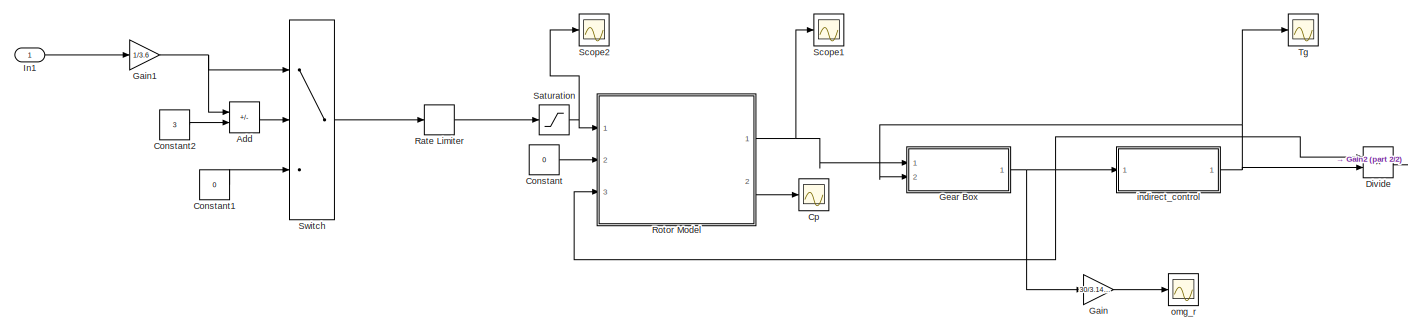
[diagram: Subsystem2 - part 1/2, center side, full height]
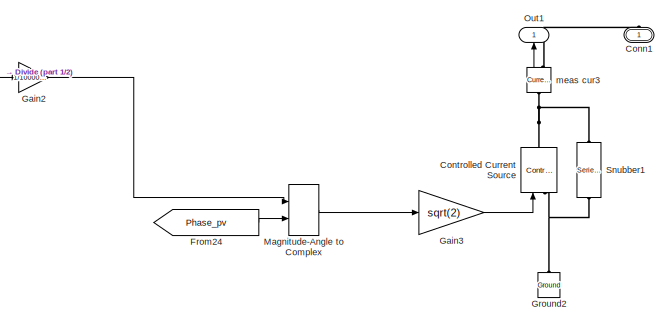
[diagram: Subsystem2 - part 2/2, middle right region]
BLOCK [SubSystem] Subsystem2
  Ports = [1, 1, 0, 0, 0, 0, 1]
  RequestExecContextInheritance = off
BLOCK [Sum] Subsystem2/Add
  IconShape = rectangular
  Inputs = +-
  Ports = [2, 1]
BLOCK [PMIOPort] Subsystem2/Conn1
  NameLocation = right
  Side = Right
BLOCK [Constant] Subsystem2/Constant
  Value = 0
BLOCK [Constant] Subsystem2/Constant1
  Value = 0
BLOCK [Constant] Subsystem2/Constant2
  Value = 3
BLOCK [Reference] Subsystem2/Controlled Current Source  REF=spsControlledCurrentSourceLib/Controlled Current Source
  NameLocation = right
  Ports = [1, 0, 0, 0, 0, 1, 1]
  SourceBlock = spsControlledCurrentSourceLib/Controlled Current Source
  SourceProductBaseCode = PS
  SourceType = Controlled Current Source
BLOCK [Scope] Subsystem2/Cp
  Floating = off
  NumInputPorts = 1
  Ports = [1]
  ScopeSpecificationString = Simulink.scopes.TimeScopeBlockCfg('CurrentConfiguration', extmgr.ConfigurationSet(extmgr.Configuration('Core','General UI',true),extmgr.Configuration('Core','Source UI',true),extmgr.Configuration('Sources','WiredSimulink',true,'DataLoggingVariableName','ScopeData2'),extmgr.Configuration('Visuals','Time Domain',true,'SerializedDisplays',{struct('MinYLimReal','0.39353','MaxYLimReal','0.43812','YLabe...<+1409ch>
BLOCK [Product] Subsystem2/Divide
  Inputs = **
  Ports = [2, 1]
BLOCK [From] Subsystem2/From24
  GotoTag = Phase_pv
  TagVisibility = global
BLOCK [Gain] Subsystem2/Gain
  Gain = 30/3.14159
BLOCK [Gain] Subsystem2/Gain1
  Gain = 1/3.6
BLOCK [Gain] Subsystem2/Gain2
  Gain = 1/100000/500
BLOCK [Gain] Subsystem2/Gain3
  Gain = sqrt(2)
BLOCK [SubSystem] Subsystem2/Gear Box
  Ports = [2, 1]
  RequestExecContextInheritance = off
BLOCK [Sum] Subsystem2/Gear Box/Add
  IconShape = rectangular
  Inputs = +-
  Ports = [2, 1]
BLOCK [Gain] Subsystem2/Gear Box/Gain
  Gain = 1/J_t
BLOCK [Gain] Subsystem2/Gear Box/Gain1
  Gain = -K_t/J_t
BLOCK [Integrator] Subsystem2/Gear Box/Integrator
  InitialCondition = 1.5
  Ports = [1, 1]
BLOCK [Sum] Subsystem2/Gear Box/Sum
  Inputs = |++
  Ports = [2, 1]
BLOCK [Inport] Subsystem2/Gear Box/T_a
BLOCK [Inport] Subsystem2/Gear Box/T_g
  Port = 2
BLOCK [Outport] Subsystem2/Gear Box/omg_r
BLOCK [Reference] Subsystem2/Ground2  REF=spsGroundLib/Ground
  NameLocation = right
  Ports = [0, 0, 0, 0, 0, 1]
  SourceBlock = spsGroundLib/Ground
  SourceProductBaseCode = PS
  SourceType = Ground
BLOCK [Inport] Subsystem2/In1
BLOCK [MagnitudeAngleToComplex] Subsystem2/Magnitude-Angle to Complex
  Ports = [2, 1]
BLOCK [Outport] Subsystem2/Out1
  NameLocation = right
  VectorParamsAs1DForOutWhenUnconnected = off
BLOCK [RateLimiter] Subsystem2/Rate Limiter
  FallingSlewLimit = -0.001
  RisingSlewLimit = 0.001
  SampleTimeMode = inherited
BLOCK [SubSystem] Subsystem2/Rotor Model
  Ports = [3, 2]
  RequestExecContextInheritance = off
BLOCK [Fcn] Subsystem2/Rotor Model/1//m
  Expr = 1/(u(1)+0.08*u(2))-0.035/(u(2)^3+1)
BLOCK [Fcn] Subsystem2/Rotor Model/C_p
  Expr = 0.22*(116*u(1)-0.4*u(2)-5)*exp(-12.5*u(1))
BLOCK [Outport] Subsystem2/Rotor Model/Cp
  Port = 2
BLOCK [Product] Subsystem2/Rotor Model/Divide
  Inputs = /*
  Ports = [2, 1]
BLOCK [From] Subsystem2/Rotor Model/From
  GotoTag = lamda
BLOCK [Goto] Subsystem2/Rotor Model/Goto
  GotoTag = lamda
BLOCK [Mux] Subsystem2/Rotor Model/Mux
  DisplayOption = bar
  Inputs = 2
  Ports = [2, 1]
BLOCK [Mux] Subsystem2/Rotor Model/Mux1
  DisplayOption = bar
  Inputs = 2
  Ports = [2, 1]
BLOCK [Mux] Subsystem2/Rotor Model/Mux2
  DisplayOption = bar
  Inputs = 2
  Ports = [2, 1]
BLOCK [Mux] Subsystem2/Rotor Model/Mux3
  DisplayOption = bar
  Inputs = 2
  Ports = [2, 1]
BLOCK [Scope] Subsystem2/Rotor Model/Scope
  Floating = off
  NumInputPorts = 1
  Ports = [1]
  ScopeSpecificationString = Simulink.scopes.TimeScopeBlockCfg('CurrentConfiguration', extmgr.ConfigurationSet(extmgr.Configuration('Core','General UI',true),extmgr.Configuration('Core','Source UI',true),extmgr.Configuration('Sources','WiredSimulink',true,'DataLoggingVariableName','ScopeData1'),extmgr.Configuration('Visuals','Time Domain',true,'SerializedDisplays',{struct('MinYLimReal','-1.875','MaxYLimReal','16.875','YLabelR...<+1419ch>
BLOCK [Scope] Subsystem2/Rotor Model/Scope1
  Floating = off
  NumInputPorts = 1
  Ports = [1]
  ScopeSpecificationString = Simulink.scopes.TimeScopeBlockCfg('CurrentConfiguration', extmgr.ConfigurationSet(extmgr.Configuration('Core','General UI',true),extmgr.Configuration('Core','Source UI',true),extmgr.Configuration('Sources','WiredSimulink',true,'DataLoggingVariableName','ScopeData2'),extmgr.Configuration('Visuals','Time Domain',true,'SerializedDisplays',{struct('MinYLimReal','-1.7685','MaxYLimReal','21.24653','YLab...<+1366ch>
BLOCK [Outport] Subsystem2/Rotor Model/T_a
BLOCK [Fcn] Subsystem2/Rotor Model/Torque
  Expr = 0.5*3.14159*rho*(40^3)*(u(1)^2)*u(2)
BLOCK [Fcn] Subsystem2/Rotor Model/lamda
  Expr = u(2)*40/u(1)
BLOCK [Inport] Subsystem2/Rotor Model/omg_r
  Port = 3
BLOCK [Inport] Subsystem2/Rotor Model/pitch
  Port = 2
BLOCK [Inport] Subsystem2/Rotor Model/wind speed
BLOCK [Saturate] Subsystem2/Saturation
  LowerLimit = 0
  UpperLimit = 25
BLOCK [Scope] Subsystem2/Scope1
  Floating = off
  NumInputPorts = 1
  Ports = [1]
  ScopeSpecificationString = Simulink.scopes.TimeScopeBlockCfg('CurrentConfiguration', extmgr.ConfigurationSet(extmgr.Configuration('Core','General UI',true),extmgr.Configuration('Core','Source UI',true),extmgr.Configuration('Sources','WiredSimulink',true,'DataLoggingVariableName','ScopeData4'),extmgr.Configuration('Visuals','Time Domain',true,'SerializedDisplays',{struct('MinYLimReal','-145648.53188','MaxYLimReal','1309344.5...<+1466ch>
BLOCK [Scope] Subsystem2/Scope2
  Floating = off
  NumInputPorts = 1
  Ports = [1]
  ScopeSpecificationString = Simulink.scopes.TimeScopeBlockCfg('CurrentConfiguration', extmgr.ConfigurationSet(extmgr.Configuration('Core','General UI',true),extmgr.Configuration('Core','Source UI',true),extmgr.Configuration('Sources','WiredSimulink',true,'DataLoggingVariableName','ScopeData5'),extmgr.Configuration('Visuals','Time Domain',true,'SerializedDisplays',{struct('MinYLimReal','-3.125','MaxYLimReal','28.125','YLabelR...<+1527ch>
BLOCK [Reference] Subsystem2/Snubber1  REF=spsSeriesRLCBranchLib/Series RLC Branch
  NameLocation = right
  Ports = [0, 0, 0, 0, 0, 1, 1]
  SourceBlock = spsSeriesRLCBranchLib/Series RLC Branch
  SourceProductBaseCode = PS
  SourceType = Series RLC Branch
BLOCK [Switch] Subsystem2/Switch
  Criteria = u2 > Threshold
  InputSameDT = off
  SaturateOnIntegerOverflow = off
BLOCK [Scope] Subsystem2/Tg
  Floating = off
  NumInputPorts = 1
  Ports = [1]
  ScopeSpecificationString = Simulink.scopes.TimeScopeBlockCfg('CurrentConfiguration', extmgr.ConfigurationSet(extmgr.Configuration('Core','General UI',true),extmgr.Configuration('Core','Source UI',true),extmgr.Configuration('Sources','WiredSimulink',true,'DataLoggingVariableName','ScopeData6'),extmgr.Configuration('Visuals','Time Domain',true,'SerializedDisplays',{struct('MinYLimReal','-80155.00924','MaxYLimReal','1528490.65...<+1446ch>
BLOCK [SubSystem] Subsystem2/indirect_control
  Ports = [1, 1]
  RequestExecContextInheritance = off
BLOCK [Fcn] Subsystem2/indirect_control/1
  Expr = u*u
BLOCK [Fcn] Subsystem2/indirect_control/2
  Expr = u^5
BLOCK [Fcn] Subsystem2/indirect_control/3
  Expr = u^3
BLOCK [Constant] Subsystem2/indirect_control/Constant
  Value = 0.5
BLOCK [Constant] Subsystem2/indirect_control/Constant1
  Value = pi
BLOCK [Constant] Subsystem2/indirect_control/Constant2
  Value = rho
BLOCK [Constant] Subsystem2/indirect_control/Constant3
  Value = 40
BLOCK [Constant] Subsystem2/indirect_control/Constant4
  Value = Cp_max
BLOCK [Product] Subsystem2/indirect_control/Divide
  Inputs = ******/
  Ports = [7, 1]
BLOCK [Outport] Subsystem2/indirect_control/T_g
BLOCK [Constant] Subsystem2/indirect_control/lamda_opt
  Value = lambda_opt
BLOCK [Inport] Subsystem2/indirect_control/omg_r
BLOCK [Reference] Subsystem2/meas cur3  REF=spsCurrentMeasurementLib/Current Measurement
  NameLocation = left
  Ports = [0, 1, 0, 0, 0, 1, 1]
  SourceBlock = spsCurrentMeasurementLib/Current Measurement
  SourceProductBaseCode = PS
  SourceType = Current Measurement
BLOCK [Scope] Subsystem2/omg_r
  Floating = off
  NumInputPorts = 1
  Ports = [1]
  ScopeSpecificationString = Simulink.scopes.TimeScopeBlockCfg('CurrentConfiguration', extmgr.ConfigurationSet(extmgr.Configuration('Core','General UI',true),extmgr.Configuration('Core','Source UI',true),extmgr.Configuration('Sources','WiredSimulink',true,'DataLoggingVariableName','ScopeData7'),extmgr.Configuration('Visuals','Time Domain',true,'SerializedDisplays',{struct('MinYLimReal','-1.79049','MaxYLimReal','16.11445','YLa...<+1417ch>
BLOCK [Reference] Three-Phase Source  REF=spsThreePhaseSourceLib/Three-Phase Source
  NameLocation = top
  Ports = [0, 0, 0, 0, 0, 0, 3]
  SourceBlock = spsThreePhaseSourceLib/Three-Phase Source
  SourceProductBaseCode = PS
  SourceType = Three-Phase Source
BLOCK [Reference] Voltage Measurement  REF=spsVoltageMeasurementLib/Voltage Measurement
  NameLocation = top
  Ports = [0, 1, 0, 0, 0, 2]
  SourceBlock = spsVoltageMeasurementLib/Voltage Measurement
  SourceProductBaseCode = PS
  SourceType = Voltage Measurement
BLOCK [Reference] Voltage Measurement1  REF=spsVoltageMeasurementLib/Voltage Measurement
  NameLocation = top
  Ports = [0, 1, 0, 0, 0, 2]
  SourceBlock = spsVoltageMeasurementLib/Voltage Measurement
  SourceProductBaseCode = PS
  SourceType = Voltage Measurement
BLOCK [Reference] meas cur1  REF=spsCurrentMeasurementLib/Current Measurement
  NameLocation = top
  Ports = [0, 1, 0, 0, 0, 1, 1]
  SourceBlock = spsCurrentMeasurementLib/Current Measurement
  SourceProductBaseCode = PS
  SourceType = Current Measurement
BLOCK [Reference] meas cur4  REF=spsCurrentMeasurementLib/Current Measurement
  Ports = [0, 1, 0, 0, 0, 1, 1]
  SourceBlock = spsCurrentMeasurementLib/Current Measurement
  SourceProductBaseCode = PS
  SourceType = Current Measurement
BLOCK [Reference] powergui  REF=spspowerguiLib/powergui
  Ports = []
  SourceBlock = spspowerguiLib/powergui
  SourceProductBaseCode = PS
  SourceType = PSB option menu block
ANNOTATION (root): Battery Controller
ANNOTATION (root): House1
ANNOTATION (root): Pole Mounted Transformer
ANNOTATION (root): Power Grid
ANNOTATION (root): Scopes
ANNOTATION (root): signal
LINE Battery/In1:1 -> Battery/Controlled Current Source1:1
LINE Battery/meas cur6:1 -> Battery/Out1:1
LINE Battery1/Add:1 -> Battery1/Storage1:1
LINE Battery1/Battery_Control/Active & Reactive Power (Phasor Type):1 -> Battery1/Battery_Control/Demux:1
LINE Battery1/Battery_Control/Add6:1 -> Battery1/Battery_Control/Integral Gain:1
NET Battery1/Battery_Control/Demux:1 -> Battery1/Battery_Control/Add6:2, Battery1/Battery_Control/Switch:3
LINE Battery1/Battery_Control/Demux:2 -> Battery1/Battery_Control/Terminator:1
LINE Battery1/Battery_Control/I:1 -> Battery1/Battery_Control/Active & Reactive Power (Phasor Type):2
LINE Battery1/Battery_Control/Integral Gain:1 -> Battery1/Battery_Control/Integrator:1
LINE Battery1/Battery_Control/Integrator:1 -> Battery1/Battery_Control/I_RMS:1
NET Battery1/Battery_Control/On:1 -> Battery1/Battery_Control/Integrator:2, Battery1/Battery_Control/Switch:2
LINE Battery1/Battery_Control/Pref:1 -> Battery1/Battery_Control/Switch:1
LINE Battery1/Battery_Control/Switch:1 -> Battery1/Battery_Control/Add6:1
LINE Battery1/Battery_Control/V:1 -> Battery1/Battery_Control/Active & Reactive Power (Phasor Type):1
NET Battery1/Battery_Control:1 -> Battery1/Magnitude-Angle to Complex:1, Battery1/Switch1:1, Battery1/Switch:3
LINE Battery1/Constant1:1 -> Battery1/Switch1:3
LINE Battery1/Constant2:1 -> Battery1/Battery_Control:3
LINE Battery1/Constant:1 -> Battery1/Switch:1
LINE Battery1/From Workspace:1 -> Battery1/Add:2
LINE Battery1/From23:1 -> Battery1/Battery_Control:1
LINE Battery1/From24:1 -> Battery1/Magnitude-Angle to Complex:2
LINE Battery1/From25:1 -> Battery1/Battery_Control:2
LINE Battery1/Gain3:1 -> Battery1/Goto14:1
LINE Battery1/Magnitude-Angle to Complex:1 -> Battery1/Gain3:1
LINE Battery1/Storage1/Add:1 -> Battery1/Storage1/Gain8:1
LINE Battery1/Storage1/Constant1:1 -> Battery1/Storage1/Add:1
LINE Battery1/Storage1/Constant:1 -> Battery1/Storage1/Integrator1:2
LINE Battery1/Storage1/Gain3:1 -> Battery1/Storage1/Add:2
LINE Battery1/Storage1/Gain8:1 -> Battery1/Storage1/Battery_SOC:1
LINE Battery1/Storage1/Gain:1 -> Battery1/Storage1/Battery_Ah:1
NET Battery1/Storage1/I_RMS:1 -> Battery1/Storage1/Integrator1:1, Battery1/Storage1/Integrator:1
LINE Battery1/Storage1/Integrator1:1 -> Battery1/Storage1/Gain3:1
LINE Battery1/Storage1/Integrator:1 -> Battery1/Storage1/Gain:1
NET Battery1/Storage1:1 -> Battery1/Ah1:1, Battery1/To Workspace1:1
NET Battery1/Storage1:2 -> Battery1/SOC1:1, Battery1/To Workspace2:1
LINE Battery1/Subsystem/Add1:1 -> Battery1/Subsystem/Saturation:1
LINE Battery1/Subsystem/Add:1 -> Battery1/Subsystem/Gain8:1
LINE Battery1/Subsystem/Constant1:1 -> Battery1/Subsystem/Add:1
LINE Battery1/Subsystem/Constant2:1 -> Battery1/Subsystem/Add1:1
LINE Battery1/Subsystem/Constant:1 -> Battery1/Subsystem/Integrator1:2
LINE Battery1/Subsystem/Gain3:1 -> Battery1/Subsystem/Add:2
LINE Battery1/Subsystem/Gain8:1 -> Battery1/Subsystem/Add1:2
LINE Battery1/Subsystem/Gain:1 -> Battery1/Subsystem/Battery_Ah:1
NET Battery1/Subsystem/I_RMS:1 -> Battery1/Subsystem/Integrator1:1, Battery1/Subsystem/Integrator:1
LINE Battery1/Subsystem/Integrator1:1 -> Battery1/Subsystem/Gain3:1
LINE Battery1/Subsystem/Integrator:1 -> Battery1/Subsystem/Gain:1
LINE Battery1/Subsystem/Saturation:1 -> Battery1/Subsystem/Battery_SOC:1
LINE Battery1/Subsystem:1 -> Battery1/Goto15:1
NET Battery1/Subsystem:2 -> Battery1/Goto17:1, Battery1/Switch1:2, Battery1/Switch:2
LINE Battery1/Switch1:1 -> Battery1/Subsystem:1
LINE Battery1/Switch:1 -> Battery1/Add:1
LINE Battery:1 -> Goto11:1
LINE From13:1 -> House 1:1
LINE From1:1 -> Battery:1
LINE From2:1 -> Scenario:1
LINE From4:1 -> Product:1
LINE From5:1 -> Subsystem2:1
LINE House 1/From24:1 -> House 1/Magnitude-Angle to Complex:2
LINE House 1/Gain3:1 -> House 1/Controlled Current Source4:1
LINE House 1/In1:1 -> House 1/Magnitude-Angle to Complex:1
LINE House 1/Magnitude-Angle to Complex:1 -> House 1/Gain3:1
LINE House 1/meas cur2:1 -> House 1/Out1:1
LINE House 1:1 -> Goto6:1
LINE PV/From24:1 -> PV/Magnitude-Angle to Complex:2
LINE PV/Gain3:1 -> PV/Controlled Current Source:1
LINE PV/In1:1 -> PV/Simulink-PS Converter:1
LINE PV/Magnitude-Angle to Complex:1 -> PV/Gain3:1
LINE PV/PS-Simulink Converter1:1 -> PV/Magnitude-Angle to Complex:1
LINE PV/meas cur3:1 -> PV/Out1:1
LINE PV:1 -> Goto3:1
LINE Partial Shading/Add:1 -> Partial Shading/Out:1
NET Partial Shading/Clock:1 -> Partial Shading/Compare To Constant1:1, Partial Shading/Compare To Constant:1
LINE Partial Shading/Compare To Constant1:1 -> Partial Shading/Logical Operator:2
LINE Partial Shading/Compare To Constant:1 -> Partial Shading/Logical Operator:1
LINE Partial Shading/Constant:1 -> Partial Shading/Product:2
LINE Partial Shading/Logical Operator1:1 -> Partial Shading/Add:1
NET Partial Shading/Logical Operator:1 -> Partial Shading/Logical Operator1:1, Partial Shading/Product:1
LINE Partial Shading/Product:1 -> Partial Shading/Add:2
LINE Partial Shading:1 -> Product:2
LINE Product:1 -> PV:1
NET Scenario/Complex to Magnitude-Angle:1 -> Scenario/Goto18:1, Scenario/Goto1:1, Scenario/Goto2:1, Scenario/Goto3:1, Scenario/Goto:1
LINE Scenario/Gain1:1 -> Scenario/PV_I:1
LINE Scenario/Gain2:1 -> Scenario/Load:1
LINE Scenario/Gain3:1 -> Scenario/P_T:1
LINE Scenario/Gain:1 -> Scenario/Gain2:1
LINE Scenario/Rate Limiter1:1 -> Scenario/Gain3:1
LINE Scenario/Rate Limiter:1 -> Scenario/Gain1:1
LINE Scenario/Signal Builder1:1 -> Scenario/Rate Limiter1:1
LINE Scenario/Signal Builder2:1 -> Scenario/Rate Limiter:1
LINE Scenario/Signal Builder3:1 -> Scenario/wind:1
LINE Scenario/Signal Builder:1 -> Scenario/Gain:1
LINE Scenario/Vsec:1 -> Scenario/Complex to Magnitude-Angle:1
LINE Scenario:1 -> Goto16:1
LINE Scenario:2 -> Goto9:1
LINE Scenario:3 -> Goto8:1
LINE Scenario:4 -> Goto10:1
LINE Scopes/Active & Reactive Power (Phasor Type)1:1 -> Scopes/Selector1:1
LINE Scopes/Active & Reactive Power (Phasor Type)2:1 -> Scopes/Selector2:1
LINE Scopes/Active & Reactive Power (Phasor Type)3:1 -> Scopes/Selector4:1
LINE Scopes/Active & Reactive Power (Phasor Type)4:1 -> Scopes/Selector3:1
LINE Scopes/Active & Reactive Power (Phasor Type)5:1 -> Scopes/Selector5:1
LINE Scopes/Active & Reactive Power (Phasor Type):1 -> Scopes/Selector:1
LINE Scopes/From Workspace1:1 -> Scopes/soc:2
LINE Scopes/From Workspace:1 -> Scopes/Battery_Ah:2
LINE Scopes/From17:1 -> Scopes/Active & Reactive Power (Phasor Type):2
LINE Scopes/From18:1 -> Scopes/Active & Reactive Power (Phasor Type)1:2
LINE Scopes/From1:1 -> Scopes/VI_prim:1
LINE Scopes/From20:1 -> Scopes/Active & Reactive Power (Phasor Type)2:2
LINE Scopes/From2:1 -> Scopes/Active & Reactive Power (Phasor Type)4:2
LINE Scopes/From3:1 -> Scopes/Active & Reactive Power (Phasor Type)5:2
LINE Scopes/From4:1 -> Scopes/VI_prim:2
NET Scopes/From5:1 -> Scopes/Active & Reactive Power (Phasor Type)1:1, Scopes/Active & Reactive Power (Phasor Type)2:1, Scopes/Active & Reactive Power (Phasor Type)3:1, Scopes/Active & Reactive Power (Phasor Type)4:1, Scopes/Active & Reactive Power (Phasor Type)5:1, Scopes/Active & Reactive Power (Phasor Type):1
LINE Scopes/From6:1 -> Scopes/Battery_Ah:1
LINE Scopes/From7:1 -> Scopes/soc:1
LINE Scopes/From:1 -> Scopes/Active & Reactive Power (Phasor Type)3:2
LINE Scopes/Selector1:1 -> Scopes/ScopeSPS:2
LINE Scopes/Selector2:1 -> Scopes/ScopeSPS:3
LINE Scopes/Selector3:1 -> Scopes/ScopeSPS:4
LINE Scopes/Selector4:1 -> Scopes/ScopeSPS:5
NET Scopes/Selector5:1 -> Scopes/ScopeSPS:6, Scopes/To Workspace1:1
NET Scopes/Selector:1 -> Scopes/ScopeSPS:1, Scopes/To Workspace:1
LINE Subsystem1/From Workspace:1 -> Subsystem1/Gain:1
LINE Subsystem1/From24:1 -> Subsystem1/Magnitude-Angle to Complex:2
LINE Subsystem1/Gain3:1 -> Subsystem1/Controlled Current Source:1
LINE Subsystem1/Gain:1 -> Subsystem1/Magnitude-Angle to Complex:1
LINE Subsystem1/Magnitude-Angle to Complex:1 -> Subsystem1/Gain3:1
LINE Subsystem1/meas cur3:1 -> Subsystem1/Out1:1
LINE Subsystem1:1 -> Goto1:1
LINE Subsystem2/Add:1 -> Subsystem2/Switch:2
LINE Subsystem2/Constant1:1 -> Subsystem2/Switch:3
LINE Subsystem2/Constant2:1 -> Subsystem2/Add:2
LINE Subsystem2/Constant:1 -> Subsystem2/Rotor Model:2
LINE Subsystem2/Divide:1 -> Subsystem2/Gain2:1
LINE Subsystem2/From24:1 -> Subsystem2/Magnitude-Angle to Complex:2
NET Subsystem2/Gain1:1 -> Subsystem2/Add:1, Subsystem2/Switch:1
LINE Subsystem2/Gain2:1 -> Subsystem2/Magnitude-Angle to Complex:1
LINE Subsystem2/Gain3:1 -> Subsystem2/Controlled Current Source:1
LINE Subsystem2/Gain:1 -> Subsystem2/omg_r:1
LINE Subsystem2/Gear Box/Add:1 -> Subsystem2/Gear Box/Gain:1
LINE Subsystem2/Gear Box/Gain1:1 -> Subsystem2/Gear Box/Sum:2
LINE Subsystem2/Gear Box/Gain:1 -> Subsystem2/Gear Box/Sum:1
NET Subsystem2/Gear Box/Integrator:1 -> Subsystem2/Gear Box/Gain1:1, Subsystem2/Gear Box/omg_r:1
LINE Subsystem2/Gear Box/Sum:1 -> Subsystem2/Gear Box/Integrator:1
LINE Subsystem2/Gear Box/T_a:1 -> Subsystem2/Gear Box/Add:1
LINE Subsystem2/Gear Box/T_g:1 -> Subsystem2/Gear Box/Add:2
NET Subsystem2/Gear Box:1 -> Subsystem2/Divide:1, Subsystem2/Gain:1, Subsystem2/Rotor Model:3, Subsystem2/indirect_control:1
LINE Subsystem2/In1:1 -> Subsystem2/Gain1:1
LINE Subsystem2/Magnitude-Angle to Complex:1 -> Subsystem2/Gain3:1
LINE Subsystem2/Rate Limiter:1 -> Subsystem2/Saturation:1
LINE Subsystem2/Rotor Model/1//m:1 -> Subsystem2/Rotor Model/Mux3:1
NET Subsystem2/Rotor Model/C_p:1 -> Subsystem2/Rotor Model/Cp:1, Subsystem2/Rotor Model/Divide:2
LINE Subsystem2/Rotor Model/Divide:1 -> Subsystem2/Rotor Model/Mux1:2
NET Subsystem2/Rotor Model/From:1 -> Subsystem2/Rotor Model/Divide:1, Subsystem2/Rotor Model/Mux2:1, Subsystem2/Rotor Model/Scope1:1
LINE Subsystem2/Rotor Model/Mux1:1 -> Subsystem2/Rotor Model/Torque:1
LINE Subsystem2/Rotor Model/Mux2:1 -> Subsystem2/Rotor Model/1//m:1
LINE Subsystem2/Rotor Model/Mux3:1 -> Subsystem2/Rotor Model/C_p:1
NET Subsystem2/Rotor Model/Mux:1 -> Subsystem2/Rotor Model/Scope:1, Subsystem2/Rotor Model/lamda:1
LINE Subsystem2/Rotor Model/Torque:1 -> Subsystem2/Rotor Model/T_a:1
LINE Subsystem2/Rotor Model/lamda:1 -> Subsystem2/Rotor Model/Goto:1
LINE Subsystem2/Rotor Model/omg_r:1 -> Subsystem2/Rotor Model/Mux:2
NET Subsystem2/Rotor Model/pitch:1 -> Subsystem2/Rotor Model/Mux2:2, Subsystem2/Rotor Model/Mux3:2
NET Subsystem2/Rotor Model/wind speed:1 -> Subsystem2/Rotor Model/Mux1:1, Subsystem2/Rotor Model/Mux:1
NET Subsystem2/Rotor Model:1 -> Subsystem2/Gear Box:1, Subsystem2/Scope1:1
LINE Subsystem2/Rotor Model:2 -> Subsystem2/Cp:1
NET Subsystem2/Saturation:1 -> Subsystem2/Rotor Model:1, Subsystem2/Scope2:1
LINE Subsystem2/Switch:1 -> Subsystem2/Rate Limiter:1
LINE Subsystem2/indirect_control/1:1 -> Subsystem2/indirect_control/Divide:1
LINE Subsystem2/indirect_control/2:1 -> Subsystem2/indirect_control/Divide:5
LINE Subsystem2/indirect_control/3:1 -> Subsystem2/indirect_control/Divide:7
LINE Subsystem2/indirect_control/Constant1:1 -> Subsystem2/indirect_control/Divide:3
LINE Subsystem2/indirect_control/Constant2:1 -> Subsystem2/indirect_control/Divide:4
LINE Subsystem2/indirect_control/Constant3:1 -> Subsystem2/indirect_control/2:1
LINE Subsystem2/indirect_control/Constant4:1 -> Subsystem2/indirect_control/Divide:6
LINE Subsystem2/indirect_control/Constant:1 -> Subsystem2/indirect_control/Divide:2
LINE Subsystem2/indirect_control/Divide:1 -> Subsystem2/indirect_control/T_g:1
LINE Subsystem2/indirect_control/lamda_opt:1 -> Subsystem2/indirect_control/3:1
LINE Subsystem2/indirect_control/omg_r:1 -> Subsystem2/indirect_control/1:1
NET Subsystem2/indirect_control:1 -> Subsystem2/Divide:2, Subsystem2/Gear Box:2, Subsystem2/Tg:1
LINE Subsystem2/meas cur3:1 -> Subsystem2/Out1:1
LINE Subsystem2:1 -> Goto7:1
LINE Voltage Measurement1:1 -> Goto4:1
LINE Voltage Measurement:1 -> Goto:1
LINE meas cur1:1 -> Goto2:1
LINE meas cur4:1 -> Goto5:1
PLINE 6.6kvTr:LConn1 -- Three-Phase Source:RConn1
PLINE 6.6kvTr:LConn2 -- Three-Phase Source:RConn2
PLINE 6.6kvTr:LConn3 -- Three-Phase Source:RConn3
PLINE 6.6kvTr:RConn1 -- SEND1:LConn1
PLINE 6.6kvTr:RConn2 -- SEND1:LConn2
PLINE 6.6kvTr:RConn3 -- SEND1:LConn3
PLINE Battery/Conn1:RConn1 -- Battery/meas cur6:RConn1
PNET net1: Battery/Controlled Current Source1:LConn1 -- Battery/Ground3:LConn1 -- Battery/Snubber:RConn1
PNET net2: Battery/Controlled Current Source1:RConn1 -- Battery/Snubber:LConn1 -- Battery/meas cur6:LConn1
PNET net3: Battery:RConn1 -- House 1:LConn1 -- PV:RConn1 -- Subsystem1:RConn1 -- Subsystem2:RConn1 -- meas cur1:LConn1
PNET net4: Ground1:LConn1 -- Linear Transformer:RConn2 -- Linear Transformer:RConn3
PLINE House 1/Conn1:RConn1 -- House 1/Load2:LConn1
PNET net5: House 1/Conn2:RConn1 -- House 1/Controlled Current Source4:LConn1 -- House 1/Snubber3:RConn1
PNET net6: House 1/Controlled Current Source4:RConn1 -- House 1/Snubber3:LConn1 -- House 1/meas cur2:RConn1
PLINE House 1/Load2:RConn1 -- House 1/meas cur2:LConn1
PNET net7: House 1:RConn1 -- Linear Transformer:RConn4 -- Voltage Measurement:LConn2
PLINE Linear Transformer:LConn1 -- meas cur4:RConn1
PNET net8: Linear Transformer:LConn2 -- SEND1:RConn3 -- Series RLC Load2:RConn1 -- Voltage Measurement1:LConn2
PNET net9: Linear Transformer:RConn1 -- Voltage Measurement:LConn1 -- meas cur1:RConn1
PLINE PV/Conn1:RConn1 -- PV/meas cur3:RConn1
PNET net10: PV/Controlled Current Source:LConn1 -- PV/Ground2:LConn1 -- PV/Snubber1:RConn1
PNET net11: PV/Controlled Current Source:RConn1 -- PV/Snubber1:LConn1 -- PV/meas cur3:LConn1
PNET net12: PV/Current Sensor:LConn1 -- PV/Diode1:RConn1 -- PV/Diode2:RConn1 -- PV/Diode3:RConn1 -- PV/Solver Configuration:RConn1 -- PV/Voltage Sensor:LConn1
PLINE PV/Current Sensor:RConn1 -- PV/PS-Simulink Converter1:LConn1
PLINE PV/Current Sensor:RConn2 -- PV/Variable Resistor:LConn2
PLINE PV/Diode1:LConn1 -- PV/Module1:LConn2
PLINE PV/Diode2:LConn1 -- PV/Module2:LConn2
PLINE PV/Diode3:LConn1 -- PV/Module3:LConn2
PNET net13: PV/Electrical Reference:LConn1 -- PV/Module1:RConn1 -- PV/Module2:RConn1 -- PV/Module3:RConn1 -- PV/Variable Resistor:RConn1 -- PV/Voltage Sensor:RConn2
PNET net14: PV/Module1/Diode2:LConn1 -- PV/Module1/Diode3:RConn1 -- PV/Module1/Solar Cell1:LConn2 -- PV/Module1/Solar Cell2:RConn1
PNET net15: PV/Module1/Diode2:RConn1 -- PV/Module1/Solar Cell2:LConn2 -- PV/Module1/positive:RConn1
PNET net16: PV/Module1/Diode3:LConn1 -- PV/Module1/Diode4:RConn1 -- PV/Module1/Solar Cell1:RConn1 -- PV/Module1/Solar Cell:LConn2
PNET net17: PV/Module1/Diode4:LConn1 -- PV/Module1/Solar Cell:RConn1 -- PV/Module1/negative:RConn1
PNET net18: PV/Module1/Solar Cell1:LConn1 -- PV/Module1/Solar Cell2:LConn1 -- PV/Module1/Solar Cell:LConn1 -- PV/Module1/constant:RConn1
PNET net19: PV/Module1:LConn1 -- PV/Module2:LConn1 -- PV/Module3:LConn1 -- PV/Simulink-PS Converter:RConn1
PNET net20: PV/Module2/Diode2:LConn1 -- PV/Module2/Diode3:RConn1 -- PV/Module2/Solar Cell1:LConn2 -- PV/Module2/Solar Cell2:RConn1
PNET net21: PV/Module2/Diode2:RConn1 -- PV/Module2/Solar Cell2:LConn2 -- PV/Module2/positive:RConn1
PNET net22: PV/Module2/Diode3:LConn1 -- PV/Module2/Diode4:RConn1 -- PV/Module2/Solar Cell1:RConn1 -- PV/Module2/Solar Cell:LConn2
PNET net23: PV/Module2/Diode4:LConn1 -- PV/Module2/Solar Cell:RConn1 -- PV/Module2/negative:RConn1
PNET net24: PV/Module2/Solar Cell1:LConn1 -- PV/Module2/Solar Cell2:LConn1 -- PV/Module2/Solar Cell:LConn1 -- PV/Module2/constant:RConn1
PNET net25: PV/Module3/Diode2:LConn1 -- PV/Module3/Diode3:RConn1 -- PV/Module3/Solar Cell1:LConn2 -- PV/Module3/Solar Cell2:RConn1
PNET net26: PV/Module3/Diode2:RConn1 -- PV/Module3/Solar Cell2:LConn2 -- PV/Module3/positive:RConn1
PNET net27: PV/Module3/Diode3:LConn1 -- PV/Module3/Diode4:RConn1 -- PV/Module3/Solar Cell1:RConn1 -- PV/Module3/Solar Cell:LConn2
PNET net28: PV/Module3/Diode4:LConn1 -- PV/Module3/Solar Cell:RConn1 -- PV/Module3/negative:RConn1
PNET net29: PV/Module3/Solar Cell1:LConn1 -- PV/Module3/Solar Cell2:LConn1 -- PV/Module3/Solar Cell:LConn1 -- PV/Module3/constant:RConn1
PLINE PV/PS Constant1:RConn1 -- PV/Variable Resistor:LConn1
PNET net30: SEND1:RConn1 -- Series RLC Load1:RConn1 -- Voltage Measurement1:LConn1 -- meas cur4:LConn1
PLINE SEND1:RConn2 -- Series RLC Load:RConn1
PNET net31: Series RLC Load1:LConn1 -- Series RLC Load2:LConn1 -- Series RLC Load:LConn1
PLINE Subsystem1/Conn1:RConn1 -- Subsystem1/meas cur3:RConn1
PNET net32: Subsystem1/Controlled Current Source:LConn1 -- Subsystem1/Ground2:LConn1 -- Subsystem1/Snubber1:RConn1
PNET net33: Subsystem1/Controlled Current Source:RConn1 -- Subsystem1/Snubber1:LConn1 -- Subsystem1/meas cur3:LConn1
PLINE Subsystem2/Conn1:RConn1 -- Subsystem2/meas cur3:RConn1
PNET net34: Subsystem2/Controlled Current Source:LConn1 -- Subsystem2/Ground2:LConn1 -- Subsystem2/Snubber1:RConn1
PNET net35: Subsystem2/Controlled Current Source:RConn1 -- Subsystem2/Snubber1:LConn1 -- Subsystem2/meas cur3:LConn1
note: NET lines group one-source signal fan-out (src -> all destinations, sorted); 1:1 wires keep LINE; PNET lines group multi-terminal physical nets as a canonical sorted terminal list (undirected conserving connections); 2-terminal nets keep the pairwise PLINE form
